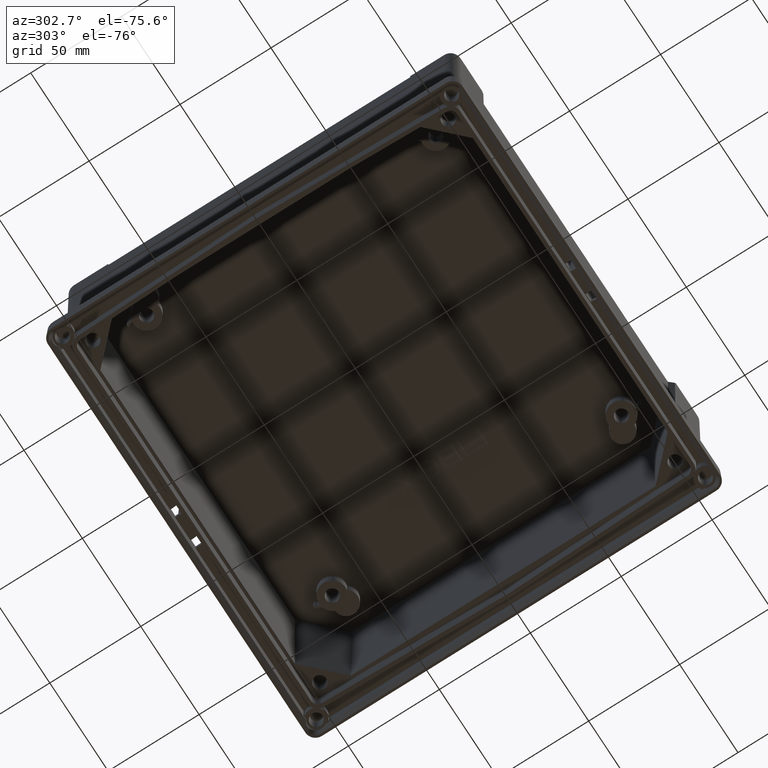
[diagram: clean part render]
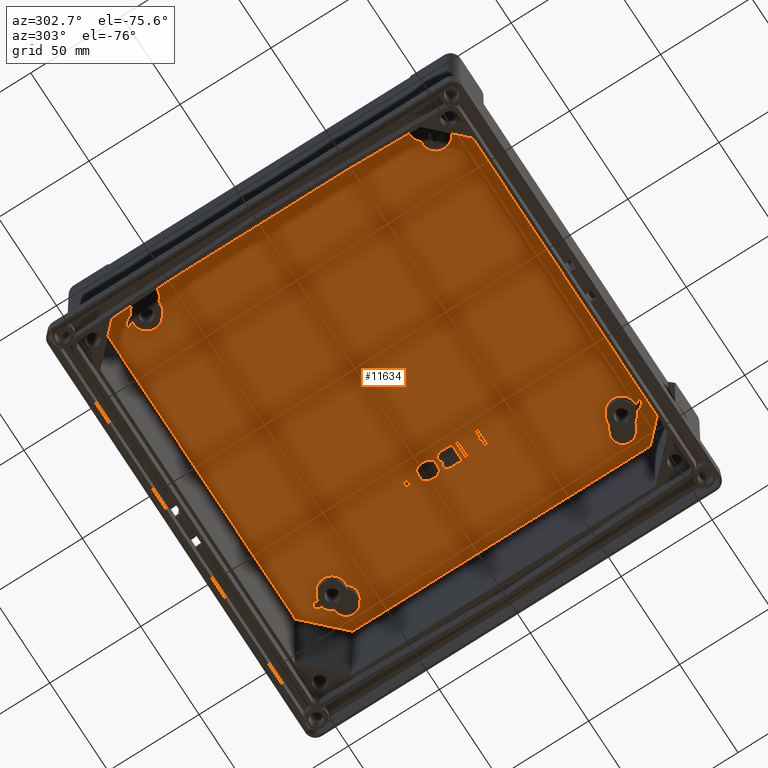
[diagram: same view with one face highlighted and labeled with its STEP entity id]
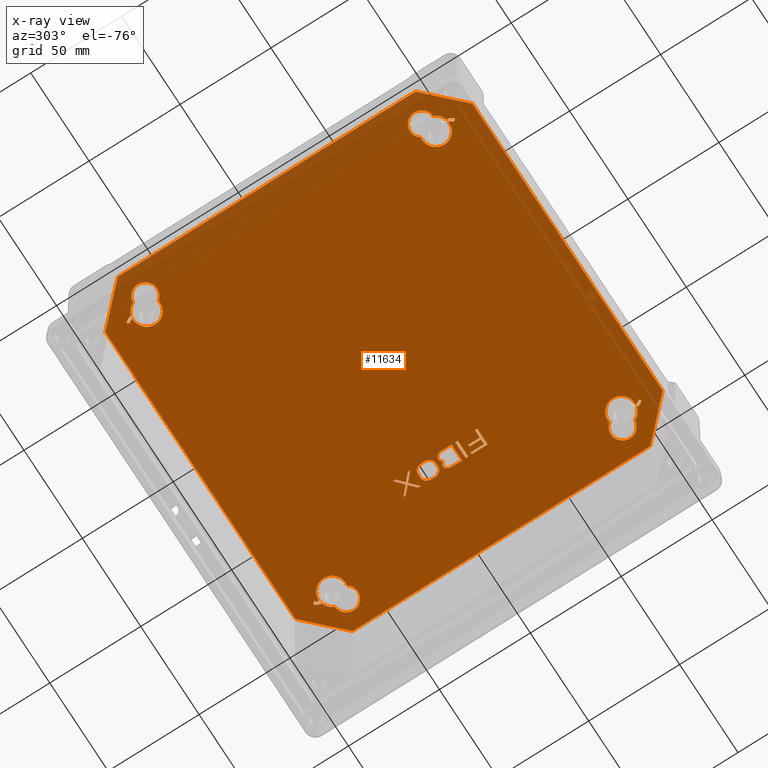
[diagram: x-ray of the same camera — body ghosted, the highlighted face saturated]
A machine part, auxiliary view. The second image highlights one B-rep face of the part: STEP entity #11634.
The next image is the same camera in x-ray: the body ghosted, the highlighted face saturated — about 10% of this face is hidden behind the body in this view.
In plain terms, the highlighted planar face has unit normal (-0, 0, -1).
Its self-contained STEP definition (entity closure, byte-faithful):
#46 = VERTEX_POINT ( 'NONE', #14225 ) ;
#50 = EDGE_CURVE ( 'NONE', #46, #17295, #14220, .T. ) ;
#181 = CARTESIAN_POINT ( 'NONE',  ( -106.7780756917593400, -100.9378842946286500, 89.34999999999999400 ) ) ;
#342 = CARTESIAN_POINT ( 'NONE',  ( 56.17807569175933200, -100.9378842946286500, 89.34999999999999400 ) ) ;
#343 = DIRECTION ( 'NONE',  ( -0.7071067811865473500, -0.7071067811865477900, 0.0000000000000000000 ) ) ;
#344 = VECTOR ( 'NONE', #343, 999.9999999999998900 ) ;
#345 = CARTESIAN_POINT ( 'NONE',  ( 65.73297999319397900, -91.38297999319398500, 89.34999999999999400 ) ) ;
#346 = LINE ( 'NONE', #345, #344 ) ;
#349 = DIRECTION ( 'NONE',  ( -0.7071067811865470200, 0.7071067811865480200, 0.0000000000000000000 ) ) ;
#350 = VECTOR ( 'NONE', #349, 1000.000000000000000 ) ;
#351 = CARTESIAN_POINT ( 'NONE',  ( -116.3329799931940000, -91.38297999319397000, 89.34999999999999400 ) ) ;
#352 = LINE ( 'NONE', #351, #350 ) ;
#374 = CARTESIAN_POINT ( 'NONE',  ( -125.8878842946286600, -81.82807569175931000, 89.34999999999999400 ) ) ;
#393 = CARTESIAN_POINT ( 'NONE',  ( 54.59813974383738600, 90.22238847471089700, 89.35000000000002300 ) ) ;
#394 = CARTESIAN_POINT ( 'NONE',  ( 54.51723326763732300, 90.18972701173801500, 89.35000000000003700 ) ) ;
#395 = CARTESIAN_POINT ( 'NONE',  ( 54.45986572915905600, 90.13134938046648900, 89.35000000000000900 ) ) ;
#412 = CARTESIAN_POINT ( 'NONE',  ( 54.45986572915905600, 90.13134938046648900, 89.35000000000000900 ) ) ;
#413 = B_SPLINE_CURVE_WITH_KNOTS ( 'NONE', 3,
 ( #395, #394, #393, #453, #452, #451 ),
 .UNSPECIFIED., .F., .F.,
 ( 4, 2, 4 ),
 ( 6.938893903907228400E-018, 0.0002420577070856009800, 0.0004841154141711950300 ),
 .UNSPECIFIED. ) ;
#443 = CARTESIAN_POINT ( 'NONE',  ( 54.89483008092367600, 90.12389409946453600, 89.35000000002446500 ) ) ;
#451 = CARTESIAN_POINT ( 'NONE',  ( 54.89483008092367600, 90.12389409946453600, 89.35000000002446500 ) ) ;
#452 = CARTESIAN_POINT ( 'NONE',  ( 54.83949457428477100, 90.18420486643265100, 89.35000000000052000 ) ) ;
#453 = CARTESIAN_POINT ( 'NONE',  ( 54.75957379892698600, 90.21967110618622600, 89.34999999999999400 ) ) ;
#497 = CARTESIAN_POINT ( 'NONE',  ( 53.74850013465061200, 89.00625129568712200, 89.35000000000430000 ) ) ;
#499 = CARTESIAN_POINT ( 'NONE',  ( 53.75775672189108400, 89.41687806407399800, 89.35000000000006500 ) ) ;
#500 = CARTESIAN_POINT ( 'NONE',  ( 53.70444130342647100, 89.36262390015893700, 89.35000000000013600 ) ) ;
#501 = CARTESIAN_POINT ( 'NONE',  ( 53.67348854595570600, 89.28858290155584100, 89.35000000000002300 ) ) ;
#502 = CARTESIAN_POINT ( 'NONE',  ( 53.67013771109386500, 89.13804232316553600, 89.35000000000000900 ) ) ;
#503 = CARTESIAN_POINT ( 'NONE',  ( 53.69768359766018800, 89.06285307786393400, 89.35000000000000900 ) ) ;
#504 = CARTESIAN_POINT ( 'NONE',  ( 53.74850013465061200, 89.00625129568712200, 89.35000000000430000 ) ) ;
#505 = B_SPLINE_CURVE_WITH_KNOTS ( 'NONE', 3,
 ( #504, #503, #502, #501, #500, #499 ),
 .UNSPECIFIED., .F., .F.,
 ( 4, 2, 4 ),
 ( 2.991244086931490900E-014, 0.0002249606436406171400, 0.0004499212872513218400 ),
 .UNSPECIFIED. ) ;
#539 = CARTESIAN_POINT ( 'NONE',  ( 53.75775672189108400, 89.41687806407399800, 89.35000000000006500 ) ) ;
#904 = VERTEX_POINT ( 'NONE', #14257 ) ;
#929 = CARTESIAN_POINT ( 'NONE',  ( 24.99999999999999600, 11.95624907016754100, 89.34999999999999400 ) ) ;
#962 = DIRECTION ( 'NONE',  ( 0.0000000000000000000, -1.000000000000000000, 0.0000000000000000000 ) ) ;
#963 = VECTOR ( 'NONE', #962, 1000.000000000000000 ) ;
#964 = CARTESIAN_POINT ( 'NONE',  ( 34.00000000000000000, 10.98124999999999800, 89.34999999999999400 ) ) ;
#965 = LINE ( 'NONE', #964, #963 ) ;
#966 = DIRECTION ( 'NONE',  ( -0.1552151726965808900, 0.9878806861988803600, 0.0000000000000000000 ) ) ;
#967 = VECTOR ( 'NONE', #966, 999.9999999999998900 ) ;
#968 = CARTESIAN_POINT ( 'NONE',  ( 25.09574467781931200, 9.396875464916227800, 89.34999999999999400 ) ) ;
#969 = LINE ( 'NONE', #968, #967 ) ;
#974 = CARTESIAN_POINT ( 'NONE',  ( 34.00000000000000000, 10.00625092983245800, 89.34999999999999400 ) ) ;
#980 = DIRECTION ( 'NONE',  ( 0.1552151726965810800, 0.9878806861988803600, 0.0000000000000000000 ) ) ;
#981 = VECTOR ( 'NONE', #980, 999.9999999999998900 ) ;
#982 = CARTESIAN_POINT ( 'NONE',  ( 25.09574467781931200, 12.56562453508377100, 89.34999999999999400 ) ) ;
#983 = LINE ( 'NONE', #982, #981 ) ;
#986 = DIRECTION ( 'NONE',  ( 0.1552151594357401600, -0.9878806882824148200, 0.0000000000000000000 ) ) ;
#987 = VECTOR ( 'NONE', #986, 1000.000000000000100 ) ;
#988 = CARTESIAN_POINT ( 'NONE',  ( 33.90425533056259200, 12.56562453508377100, 89.34999999999999400 ) ) ;
#989 = LINE ( 'NONE', #988, #987 ) ;
#996 = CARTESIAN_POINT ( 'NONE',  ( 33.80851066112518300, 13.17500000000000100, 89.34999999999999400 ) ) ;
#1006 = CARTESIAN_POINT ( 'NONE',  ( 34.00000000000000000, 11.95624907016754100, 89.34999999999999400 ) ) ;
#1013 = CARTESIAN_POINT ( 'NONE',  ( 25.19148935563862300, 8.787499999999997900, 89.34999999999999400 ) ) ;
#1047 = CARTESIAN_POINT ( 'NONE',  ( 33.42553198337554900, 14.14999907016753900, 89.34999999999999400 ) ) ;
#1048 = DIRECTION ( 'NONE',  ( 1.000000000000000000, 0.0000000000000000000, 0.0000000000000000000 ) ) ;
#1049 = VECTOR ( 'NONE', #1048, 1000.000000000000000 ) ;
#1050 = CARTESIAN_POINT ( 'NONE',  ( 31.51063832640647900, 4.156249535083770000, 89.34999999999999400 ) ) ;
#1051 = LINE ( 'NONE', #1050, #1049 ) ;
#1058 = CARTESIAN_POINT ( 'NONE',  ( 25.00000000000000000, 10.00625092983245800, 89.34999999999999400 ) ) ;
#1059 = DIRECTION ( 'NONE',  ( -1.779205261886779000E-015, 1.000000000000000000, 0.0000000000000000000 ) ) ;
#1060 = VECTOR ( 'NONE', #1059, 1000.000000000000000 ) ;
#1061 = CARTESIAN_POINT ( 'NONE',  ( 25.00000000000000000, 10.98124999999999800, 89.34999999999999400 ) ) ;
#1062 = LINE ( 'NONE', #1061, #1060 ) ;
#1072 = CARTESIAN_POINT ( 'NONE',  ( 31.12765938043594400, 4.156249535083770000, 89.34999999999999400 ) ) ;
#1088 = CARTESIAN_POINT ( 'NONE',  ( 25.00000000000000000, -19.00000000000000000, 89.34999999999999400 ) ) ;
#1089 = CARTESIAN_POINT ( 'NONE',  ( 25.00000000000000000, -17.53750000000000100, 89.34999999999999400 ) ) ;
#1090 = CARTESIAN_POINT ( 'NONE',  ( 25.57446808367967600, 7.812500929832457300, 89.34999999999999400 ) ) ;
#1091 = DIRECTION ( 'NONE',  ( 0.3656055048287190100, -0.9307699043474372300, 0.0000000000000000000 ) ) ;
#1092 = VECTOR ( 'NONE', #1091, 1000.000000000000100 ) ;
#1093 = CARTESIAN_POINT ( 'NONE',  ( 33.61702132225035900, 13.66249953508377000, 89.34999999999999400 ) ) ;
#1094 = LINE ( 'NONE', #1093, #1092 ) ;
#1128 = EDGE_CURVE ( 'NONE', #904, #46, #14256, .T. ) ;
#1134 = DIRECTION ( 'NONE',  ( -0.3656055464213768800, 0.9307698880098810300, 0.0000000000000000000 ) ) ;
#1135 = VECTOR ( 'NONE', #1134, 1000.000000000000100 ) ;
#1142 = CARTESIAN_POINT ( 'NONE',  ( 25.38297871965915300, 8.300000464916228900, 89.34999999999999400 ) ) ;
#1143 = LINE ( 'NONE', #1142, #1135 ) ;
#1173 = CARTESIAN_POINT ( 'NONE',  ( 31.89361727237701400, 15.61249907016753500, 89.34999999999999400 ) ) ;
#1174 = DIRECTION ( 'NONE',  ( 0.8436261997018003100, -0.5369309407891280600, 0.0000000000000000000 ) ) ;
#1175 = VECTOR ( 'NONE', #1174, 1000.000000000000100 ) ;
#1176 = CARTESIAN_POINT ( 'NONE',  ( 32.27659595012664800, 15.36874999999999700, 89.34999999999999400 ) ) ;
#1177 = LINE ( 'NONE', #1176, #1175 ) ;
#1201 = DIRECTION ( 'NONE',  ( 1.000000000000000000, 0.0000000000000000000, 0.0000000000000000000 ) ) ;
#1202 = DIRECTION ( 'NONE',  ( 0.0000000000000000000, 0.0000000000000000000, 1.000000000000000000 ) ) ;
#1203 = CARTESIAN_POINT ( 'NONE',  ( 54.19999999999999600, 79.50000000000000000, 89.35000000002446500 ) ) ;
#1204 = AXIS2_PLACEMENT_3D ( 'NONE', #1203, #1202, #1201 ) ;
#1205 = CIRCLE ( 'NONE', #1204, 7.499999999998313300 ) ;
#1267 = DIRECTION ( 'NONE',  ( -0.6177639700550090500, 0.7863635783159554900, 0.0000000000000000000 ) ) ;
#1268 = VECTOR ( 'NONE', #1267, 1000.000000000000100 ) ;
#1269 = CARTESIAN_POINT ( 'NONE',  ( 25.95744679495692300, 7.324999999999998400, 89.34999999999999400 ) ) ;
#1270 = LINE ( 'NONE', #1269, #1268 ) ;
#1272 = CARTESIAN_POINT ( 'NONE',  ( 30.55319136381149300, 3.912500464916228300, 89.34999999999999400 ) ) ;
#1277 = DIRECTION ( 'NONE',  ( 0.9205614048781706200, -0.3905978748645835300, 0.0000000000000000000 ) ) ;
#1278 = VECTOR ( 'NONE', #1277, 1000.000000000000000 ) ;
#1279 = CARTESIAN_POINT ( 'NONE',  ( 32.18085128068923200, 4.034374999999999800, 89.34999999999999400 ) ) ;
#1280 = LINE ( 'NONE', #1279, #1278 ) ;
#1281 = CARTESIAN_POINT ( 'NONE',  ( 34.00000000000000000, -10.22500000000000100, 89.34999999999999400 ) ) ;
#1286 = CARTESIAN_POINT ( 'NONE',  ( 31.89361727237701400, 4.156249535083770000, 89.34999999999999400 ) ) ;
#1308 = DIRECTION ( 'NONE',  ( 0.0000000000000000000, 1.000000000000000000, 0.0000000000000000000 ) ) ;
#1309 = VECTOR ( 'NONE', #1308, 1000.000000000000000 ) ;
#1310 = CARTESIAN_POINT ( 'NONE',  ( 25.00000000000000000, -18.26875000000000100, 89.34999999999999400 ) ) ;
#1314 = LINE ( 'NONE', #1310, #1309 ) ;
#1318 = DIRECTION ( 'NONE',  ( 0.9205614048781730600, 0.3905978748645778700, 0.0000000000000000000 ) ) ;
#1319 = VECTOR ( 'NONE', #1318, 1000.000000000000200 ) ;
#1320 = CARTESIAN_POINT ( 'NONE',  ( 30.84042537212371800, 4.034374999999998900, 89.34999999999999400 ) ) ;
#1321 = LINE ( 'NONE', #1320, #1319 ) ;
#1323 = CARTESIAN_POINT ( 'NONE',  ( 26.34042550623416900, 6.837499070167538700, 89.34999999999999400 ) ) ;
#1331 = DIRECTION ( 'NONE',  ( 1.000000000000000000, 0.0000000000000000000, 0.0000000000000000000 ) ) ;
#1332 = VECTOR ( 'NONE', #1331, 1000.000000000000000 ) ;
#1333 = CARTESIAN_POINT ( 'NONE',  ( 29.50000000000000400, -6.812500464916230000, 89.34999999999999400 ) ) ;
#1334 = LINE ( 'NONE', #1333, #1332 ) ;
#1345 = DIRECTION ( 'NONE',  ( -1.000000000000000000, 0.0000000000000000000, 0.0000000000000000000 ) ) ;
#1346 = VECTOR ( 'NONE', #1345, 1000.000000000000000 ) ;
#1347 = CARTESIAN_POINT ( 'NONE',  ( 29.50000000000000400, -19.00000000000000000, 89.34999999999999400 ) ) ;
#1348 = LINE ( 'NONE', #1347, #1346 ) ;
#1349 = CARTESIAN_POINT ( 'NONE',  ( 34.00000000000000000, -19.00000000000000000, 89.34999999999999400 ) ) ;
#1441 = CARTESIAN_POINT ( 'NONE',  ( 32.85106396675109900, -10.22500000000000100, 89.34999999999999400 ) ) ;
#1533 = DIRECTION ( 'NONE',  ( 0.0000000000000000000, -1.000000000000000000, 0.0000000000000000000 ) ) ;
#1534 = VECTOR ( 'NONE', #1533, 1000.000000000000000 ) ;
#1535 = CARTESIAN_POINT ( 'NONE',  ( 34.00000000000000000, -14.61250000000000100, 89.34999999999999400 ) ) ;
#1536 = LINE ( 'NONE', #1535, #1534 ) ;
#1572 = LINE ( 'NONE', #1631, #1630 ) ;
#1601 = CARTESIAN_POINT ( 'NONE',  ( 28.06382969021797200, 6.106249070167539400, 89.34999999999999400 ) ) ;
#1602 = CARTESIAN_POINT ( 'NONE',  ( 27.10638299584388700, 6.350000929832457800, 89.34999999999999400 ) ) ;
#1629 = DIRECTION ( 'NONE',  ( -0.8436262422856424200, 0.5369308738813651800, 0.0000000000000000000 ) ) ;
#1630 = VECTOR ( 'NONE', #1629, 1000.000000000000000 ) ;
#1631 = CARTESIAN_POINT ( 'NONE',  ( 26.72340425103902800, 6.593749999999999100, 89.34999999999999400 ) ) ;
#1671 = CARTESIAN_POINT ( 'NONE',  ( 29.78723400831222500, 3.181250464916227200, 89.34999999999999400 ) ) ;
#1679 = DIRECTION ( 'NONE',  ( 1.000000000000000000, 0.0000000000000000000, 0.0000000000000000000 ) ) ;
#1680 = VECTOR ( 'NONE', #1679, 1000.000000000000000 ) ;
#1681 = CARTESIAN_POINT ( 'NONE',  ( 31.60638299584388000, -17.53750000000000100, 89.34999999999999400 ) ) ;
#1682 = LINE ( 'NONE', #1681, #1680 ) ;
#1684 = DIRECTION ( 'NONE',  ( 1.000000000000000000, 0.0000000000000000000, 0.0000000000000000000 ) ) ;
#1685 = VECTOR ( 'NONE', #1684, 1000.000000000000000 ) ;
#1686 = CARTESIAN_POINT ( 'NONE',  ( 33.42553198337554900, -10.22500000000000100, 89.34999999999999400 ) ) ;
#1687 = LINE ( 'NONE', #1686, #1685 ) ;
#1712 = DIRECTION ( 'NONE',  ( 0.7233041855287849500, 0.6905295469395506000, 0.0000000000000000000 ) ) ;
#1714 = VECTOR ( 'NONE', #1712, 1000.000000000000100 ) ;
#1715 = CARTESIAN_POINT ( 'NONE',  ( 30.17021268606185900, 3.546875464916227700, 89.34999999999999400 ) ) ;
#1716 = LINE ( 'NONE', #1715, #1714 ) ;
#1718 = CARTESIAN_POINT ( 'NONE',  ( 32.85106396675109900, -17.53750000000000100, 89.34999999999999400 ) ) ;
#1726 = CARTESIAN_POINT ( 'NONE',  ( 25.00000000000000000, -8.274999767541885400, 89.34999999999999400 ) ) ;
#1727 = DIRECTION ( 'NONE',  ( 0.0000000000000000000, 1.000000000000000000, 0.0000000000000000000 ) ) ;
#1728 = VECTOR ( 'NONE', #1727, 1000.000000000000000 ) ;
#1729 = CARTESIAN_POINT ( 'NONE',  ( 25.00000000000000000, -7.543750116229057700, 89.34999999999999400 ) ) ;
#1730 = LINE ( 'NONE', #1729, #1728 ) ;
#1732 = CARTESIAN_POINT ( 'NONE',  ( 25.00000000000000000, -6.812500464916230000, 89.34999999999999400 ) ) ;
#1827 = DIRECTION ( 'NONE',  ( 0.0000000000000000000, 1.000000000000000000, 0.0000000000000000000 ) ) ;
#1828 = VECTOR ( 'NONE', #1827, 1000.000000000000000 ) ;
#1829 = CARTESIAN_POINT ( 'NONE',  ( 32.85106396675109900, -13.88125000000000100, 89.34999999999999400 ) ) ;
#1830 = LINE ( 'NONE', #1829, #1828 ) ;
#1835 = EDGE_CURVE ( 'NONE', #1850, #2348, #14235, .T. ) ;
#1839 = CARTESIAN_POINT ( 'NONE',  ( 34.00000000000000000, -8.274999767541885400, 89.34999999999999400 ) ) ;
#1850 = VERTEX_POINT ( 'NONE', #14299 ) ;
#1898 = DIRECTION ( 'NONE',  ( 1.000000000000000000, 0.0000000000000000000, 0.0000000000000000000 ) ) ;
#1899 = DIRECTION ( 'NONE',  ( 0.0000000000000000000, 0.0000000000000000000, 1.000000000000000000 ) ) ;
#1900 = CARTESIAN_POINT ( 'NONE',  ( 54.19999999999999600, 79.50000000000000000, 89.35000000002446500 ) ) ;
#1901 = AXIS2_PLACEMENT_3D ( 'NONE', #1900, #1899, #1898 ) ;
#1902 = CIRCLE ( 'NONE', #1901, 7.499999999998320500 ) ;
#1908 = DIRECTION ( 'NONE',  ( 0.3656045986410378400, 0.9307702602965597400, 0.0000000000000000000 ) ) ;
#1909 = VECTOR ( 'NONE', #1908, 1000.000000000000200 ) ;
#1910 = CARTESIAN_POINT ( 'NONE',  ( 29.69148933887481700, 2.937499999999997300, 89.34999999999999400 ) ) ;
#1911 = LINE ( 'NONE', #1910, #1909 ) ;
#1929 = DIRECTION ( 'NONE',  ( -1.000000000000000000, 0.0000000000000000000, 0.0000000000000000000 ) ) ;
#1930 = VECTOR ( 'NONE', #1929, 1000.000000000000000 ) ;
#1931 = CARTESIAN_POINT ( 'NONE',  ( 29.50000000000000400, -8.274999767541885400, 89.34999999999999400 ) ) ;
#1932 = LINE ( 'NONE', #1931, #1930 ) ;
#2033 = DIRECTION ( 'NONE',  ( 0.0000000000000000000, -1.000000000000000000, 0.0000000000000000000 ) ) ;
#2034 = VECTOR ( 'NONE', #2033, 1000.000000000000000 ) ;
#2035 = CARTESIAN_POINT ( 'NONE',  ( 34.00000000000000000, -7.543750116229057700, 89.34999999999999400 ) ) ;
#2036 = LINE ( 'NONE', #2035, #2034 ) ;
#2041 = DIRECTION ( 'NONE',  ( -0.7009092642998419100, -0.7132504491541904500, 0.0000000000000000000 ) ) ;
#2042 = VECTOR ( 'NONE', #2041, 1000.000000000000000 ) ;
#2043 = CARTESIAN_POINT ( 'NONE',  ( 54.10881133069256100, 89.77411382925160400, 89.34999999999999400 ) ) ;
#2044 = LINE ( 'NONE', #2043, #2042 ) ;
#2045 = CARTESIAN_POINT ( 'NONE',  ( 34.00000000000000000, -6.812500464916230000, 89.34999999999999400 ) ) ;
#2066 = CARTESIAN_POINT ( 'NONE',  ( 56.46530060728821400, 86.64971420118364200, 89.35000000001225800 ) ) ;
#2067 = DIRECTION ( 'NONE',  ( 1.000000000000000000, 0.0000000000000000000, 0.0000000000000000000 ) ) ;
#2068 = DIRECTION ( 'NONE',  ( 0.0000000000000000000, 0.0000000000000000000, 1.000000000000000000 ) ) ;
#2069 = CARTESIAN_POINT ( 'NONE',  ( 50.39999999999999900, 86.00000000000000000, 89.35000000002446500 ) ) ;
#2070 = AXIS2_PLACEMENT_3D ( 'NONE', #2069, #2068, #2067 ) ;
#2071 = CIRCLE ( 'NONE', #2070, 6.099999999998447100 ) ;
#2072 = DIRECTION ( 'NONE',  ( 0.0000000000000000000, -1.000000000000000000, 0.0000000000000000000 ) ) ;
#2073 = VECTOR ( 'NONE', #2072, 1000.000000000000000 ) ;
#2074 = CARTESIAN_POINT ( 'NONE',  ( 30.36170202493667600, -14.36874988377094400, 89.34999999999999400 ) ) ;
#2075 = LINE ( 'NONE', #2074, #2073 ) ;
#2076 = CARTESIAN_POINT ( 'NONE',  ( 30.36170202493667600, -11.19999976754188600, 89.34999999999999400 ) ) ;
#2096 = CARTESIAN_POINT ( 'NONE',  ( 61.07867103339481900, 82.48896049059239000, 89.35000000001994600 ) ) ;
#2131 = CIRCLE ( 'NONE', #2182, 4.499999999998172100 ) ;
#2132 = CARTESIAN_POINT ( 'NONE',  ( 30.36170202493667600, -17.53750000000000100, 89.34999999999999400 ) ) ;
#2133 = CARTESIAN_POINT ( 'NONE',  ( 54.79276360834547400, 86.97653872487855200, 89.35000000002224900 ) ) ;
#2135 = DIRECTION ( 'NONE',  ( 1.000000000000000000, 0.0000000000000000000, 0.0000000000000000000 ) ) ;
#2136 = DIRECTION ( 'NONE',  ( -0.0000000000000000000, -0.0000000000000000000, -1.000000000000000000 ) ) ;
#2137 = CARTESIAN_POINT ( 'NONE',  ( 60.69999999999999600, 76.00000000000000000, 89.35000000004895100 ) ) ;
#2138 = AXIS2_PLACEMENT_3D ( 'NONE', #2137, #2136, #2135 ) ;
#2139 = CIRCLE ( 'NONE', #2138, 6.500000000000192700 ) ;
#2179 = DIRECTION ( 'NONE',  ( -1.000000000000000000, 6.167905692364486400E-015, 0.0000000000000000000 ) ) ;
#2180 = DIRECTION ( 'NONE',  ( 0.0000000000000000000, 0.0000000000000000000, 1.000000000000000000 ) ) ;
#2181 = CARTESIAN_POINT ( 'NONE',  ( 50.39999999999999900, 86.00000000000000000, 89.35000000004895100 ) ) ;
#2182 = AXIS2_PLACEMENT_3D ( 'NONE', #2181, #2180, #2179 ) ;
#2186 = DIRECTION ( 'NONE',  ( 1.000000000000000000, 0.0000000000000000000, 0.0000000000000000000 ) ) ;
#2187 = VECTOR ( 'NONE', #2186, 1000.000000000000000 ) ;
#2188 = CARTESIAN_POINT ( 'NONE',  ( 29.78723400831222500, -11.19999976754188600, 89.34999999999999400 ) ) ;
#2189 = LINE ( 'NONE', #2188, #2187 ) ;
#2200 = CARTESIAN_POINT ( 'NONE',  ( 29.21276599168777500, -11.19999976754188600, 89.34999999999999400 ) ) ;
#2212 = DIRECTION ( 'NONE',  ( 0.0000000000000000000, 1.000000000000000000, 0.0000000000000000000 ) ) ;
#2213 = VECTOR ( 'NONE', #2212, 1000.000000000000000 ) ;
#2214 = CARTESIAN_POINT ( 'NONE',  ( 29.21276599168777500, -14.36874988377094400, 89.34999999999999400 ) ) ;
#2215 = LINE ( 'NONE', #2214, #2213 ) ;
#2220 = CARTESIAN_POINT ( 'NONE',  ( 29.21276599168777500, -17.53750000000000100, 89.34999999999999400 ) ) ;
#2254 = DIRECTION ( 'NONE',  ( 0.0000000000000000000, 1.000000000000000000, 0.0000000000000000000 ) ) ;
#2255 = VECTOR ( 'NONE', #2254, 1000.000000000000000 ) ;
#2256 = CARTESIAN_POINT ( 'NONE',  ( 24.99999999999999600, 26.82500092983245600, 89.34999999999999400 ) ) ;
#2257 = LINE ( 'NONE', #2256, #2255 ) ;
#2322 = EDGE_CURVE ( 'NONE', #2475, #1850, #14289, .T. ) ;
#2348 = VERTEX_POINT ( 'NONE', #14276 ) ;
#2412 = DIRECTION ( 'NONE',  ( 1.000000000000000000, 0.0000000000000000000, 0.0000000000000000000 ) ) ;
#2413 = CARTESIAN_POINT ( 'NONE',  ( -25.30000000000000800, 100.9378842946286500, 89.34999999999999400 ) ) ;
#2417 = LINE ( 'NONE', #2413, #2471 ) ;
#2451 = EDGE_CURVE ( 'NONE', #2348, #904, #14324, .T. ) ;
#2454 = DIRECTION ( 'NONE',  ( 0.0000000000000000000, 1.000000000000000000, 0.0000000000000000000 ) ) ;
#2455 = VECTOR ( 'NONE', #2454, 1000.000000000000000 ) ;
#2456 = CARTESIAN_POINT ( 'NONE',  ( 75.28788429462864000, 0.0000000000000000000, 89.34999999999999400 ) ) ;
#2457 = LINE ( 'NONE', #2456, #2455 ) ;
#2467 = DIRECTION ( 'NONE',  ( 1.000000000000000000, 0.0000000000000000000, 0.0000000000000000000 ) ) ;
#2468 = VECTOR ( 'NONE', #2467, 1000.000000000000000 ) ;
#2469 = CARTESIAN_POINT ( 'NONE',  ( 27.10638299584388700, -17.53750000000000100, 89.34999999999999400 ) ) ;
#2470 = LINE ( 'NONE', #2469, #2468 ) ;
#2471 = VECTOR ( 'NONE', #2412, 1000.000000000000000 ) ;
#2475 = VERTEX_POINT ( 'NONE', #14316 ) ;
#2489 = VERTEX_POINT ( 'NONE', #14314 ) ;
#2495 = EDGE_CURVE ( 'NONE', #2489, #2475, #14313, .T. ) ;
#2542 = EDGE_CURVE ( 'NONE', #2600, #2489, #14305, .T. ) ;
#2557 = DIRECTION ( 'NONE',  ( 0.0000000000000000000, -1.000000000000000000, 0.0000000000000000000 ) ) ;
#2558 = VECTOR ( 'NONE', #2557, 1000.000000000000000 ) ;
#2559 = CARTESIAN_POINT ( 'NONE',  ( -125.8878842946286600, 0.0000000000000000000, 89.34999999999999400 ) ) ;
#2560 = LINE ( 'NONE', #2559, #2558 ) ;
#2600 = VERTEX_POINT ( 'NONE', #14359 ) ;
#2722 = DIRECTION ( 'NONE',  ( 1.000000000000000000, 0.0000000000000000000, 0.0000000000000000000 ) ) ;
#2723 = VECTOR ( 'NONE', #2722, 1000.000000000000000 ) ;
#2724 = CARTESIAN_POINT ( 'NONE',  ( -25.30000000000000800, -100.9378842946286500, 89.34999999999999400 ) ) ;
#2725 = LINE ( 'NONE', #2724, #2723 ) ;
#2774 = EDGE_CURVE ( 'NONE', #2916, #2980, #14338, .T. ) ;
#2916 = VERTEX_POINT ( 'NONE', #14391 ) ;
#2980 = VERTEX_POINT ( 'NONE', #14390 ) ;
#3111 = CARTESIAN_POINT ( 'NONE',  ( 75.28788429462864000, 81.82807569175932400, 89.34999999999999400 ) ) ;
#3170 = CARTESIAN_POINT ( 'NONE',  ( -125.8878842946286600, 81.82807569175931000, 89.34999999999999400 ) ) ;
#3209 = CARTESIAN_POINT ( 'NONE',  ( -106.7780756917593400, 100.9378842946286500, 89.34999999999999400 ) ) ;
#3215 = DIRECTION ( 'NONE',  ( -0.7071067811865470200, -0.7071067811865480200, 0.0000000000000000000 ) ) ;
#3216 = VECTOR ( 'NONE', #3215, 1000.000000000000000 ) ;
#3217 = CARTESIAN_POINT ( 'NONE',  ( -116.3329799931940000, 91.38297999319397000, 89.34999999999999400 ) ) ;
#3218 = LINE ( 'NONE', #3217, #3216 ) ;
#3283 = LINE ( 'NONE', #3345, #3344 ) ;
#3342 = CARTESIAN_POINT ( 'NONE',  ( 56.17807569175933200, 100.9378842946286500, 89.34999999999999400 ) ) ;
#3343 = DIRECTION ( 'NONE',  ( -0.7071067811865473500, 0.7071067811865477900, 0.0000000000000000000 ) ) ;
#3344 = VECTOR ( 'NONE', #3343, 999.9999999999998900 ) ;
#3345 = CARTESIAN_POINT ( 'NONE',  ( 65.73297999319397900, 91.38297999319398500, 89.34999999999999400 ) ) ;
#3414 = CARTESIAN_POINT ( 'NONE',  ( 24.99999999999999600, 26.09375092983245300, 89.34999999999999400 ) ) ;
#3427 = CARTESIAN_POINT ( 'NONE',  ( 30.93617004156112700, 6.106249070167539400, 89.34999999999999400 ) ) ;
#3501 = LINE ( 'NONE', #3564, #3563 ) ;
#3510 = DIRECTION ( 'NONE',  ( -0.7293774822167280500, 0.6841114590731445200, 0.0000000000000000000 ) ) ;
#3511 = VECTOR ( 'NONE', #3510, 999.9999999999998900 ) ;
#3512 = CARTESIAN_POINT ( 'NONE',  ( 26.81914898753166200, 24.38750046491622600, 89.34999999999999400 ) ) ;
#3516 = LINE ( 'NONE', #3512, #3511 ) ;
#3552 = CARTESIAN_POINT ( 'NONE',  ( 31.89361727237701400, 6.350000929832457800, 89.34999999999999400 ) ) ;
#3557 = CARTESIAN_POINT ( 'NONE',  ( 28.63829797506332000, 22.68124999999999900, 89.34999999999999400 ) ) ;
#3562 = DIRECTION ( 'NONE',  ( -1.000000000000000000, 0.0000000000000000000, 0.0000000000000000000 ) ) ;
#3563 = VECTOR ( 'NONE', #3562, 1000.000000000000000 ) ;
#3564 = CARTESIAN_POINT ( 'NONE',  ( 29.49999986588954600, 6.106249070167539400, 89.34999999999999400 ) ) ;
#3596 = EDGE_CURVE ( 'NONE', #3617, #2916, #14374, .T. ) ;
#3613 = DIRECTION ( 'NONE',  ( -0.9690879409984883800, 0.2467155499990021600, 0.0000000000000000000 ) ) ;
#3614 = VECTOR ( 'NONE', #3613, 1000.000000000000200 ) ;
#3615 = CARTESIAN_POINT ( 'NONE',  ( 27.58510634303093000, 6.228124999999999500, 89.34999999999999400 ) ) ;
#3616 = LINE ( 'NONE', #3615, #3614 ) ;
#3617 = VERTEX_POINT ( 'NONE', #14370 ) ;
#3642 = EDGE_CURVE ( 'NONE', #2980, #2600, #14369, .T. ) ;
#3644 = DIRECTION ( 'NONE',  ( -0.9690879740479132500, -0.2467154201822636100, 0.0000000000000000000 ) ) ;
#3645 = VECTOR ( 'NONE', #3644, 1000.000000000000100 ) ;
#3646 = CARTESIAN_POINT ( 'NONE',  ( 31.41489365696907000, 6.228124999999999500, 89.34999999999999400 ) ) ;
#3652 = LINE ( 'NONE', #3646, #3645 ) ;
#3736 = CARTESIAN_POINT ( 'NONE',  ( 32.65957462787628200, 6.837499070167540400, 89.34999999999999400 ) ) ;
#3761 = DIRECTION ( 'NONE',  ( -0.8436261997017964200, -0.5369309407891342800, 0.0000000000000000000 ) ) ;
#3762 = VECTOR ( 'NONE', #3761, 1000.000000000000000 ) ;
#3769 = CARTESIAN_POINT ( 'NONE',  ( 32.27659595012664800, 6.593749999999999100, 89.34999999999999400 ) ) ;
#3770 = LINE ( 'NONE', #3769, #3762 ) ;
#3858 = DIRECTION ( 'NONE',  ( -0.3656055048287166800, -0.9307699043474381200, 0.0000000000000000000 ) ) ;
#3873 = VECTOR ( 'NONE', #3858, 1000.000000000000200 ) ;
#3874 = CARTESIAN_POINT ( 'NONE',  ( 33.61702132225036600, 8.300000464916228900, 89.34999999999999400 ) ) ;
#3875 = LINE ( 'NONE', #3874, #3873 ) ;
#3896 = LINE ( 'NONE', #3947, #3946 ) ;
#3898 = CARTESIAN_POINT ( 'NONE',  ( 33.42553198337555600, 7.812500929832466100, 89.34999999999999400 ) ) ;
#3916 = CARTESIAN_POINT ( 'NONE',  ( 33.80851066112518300, 8.787499999999992500, 89.34999999999999400 ) ) ;
#3937 = DIRECTION ( 'NONE',  ( -0.1552151594357397100, -0.9878806882824150400, 0.0000000000000000000 ) ) ;
#3938 = VECTOR ( 'NONE', #3937, 1000.000000000000000 ) ;
#3939 = CARTESIAN_POINT ( 'NONE',  ( 33.90425533056259200, 9.396875464916226100, 89.34999999999999400 ) ) ;
#3940 = LINE ( 'NONE', #3939, #3938 ) ;
#3945 = DIRECTION ( 'NONE',  ( -0.6177639366126143100, -0.7863636045881611200, 0.0000000000000000000 ) ) ;
#3946 = VECTOR ( 'NONE', #3945, 1000.000000000000100 ) ;
#3947 = CARTESIAN_POINT ( 'NONE',  ( 33.04255330562591600, 7.325000000000003700, 89.34999999999999400 ) ) ;
#3991 = ORIENTED_EDGE ( 'NONE', *, *, #15707, .F. ) ;
#3996 = ORIENTED_EDGE ( 'NONE', *, *, #16439, .T. ) ;
#4216 = VERTEX_POINT ( 'NONE', #14811 ) ;
#4219 = EDGE_CURVE ( 'NONE', #4216, #10757, #14810, .T. ) ;
#4265 = ORIENTED_EDGE ( 'NONE', *, *, #14481, .F. ) ;
#4569 = CARTESIAN_POINT ( 'NONE',  ( -104.3577569638444500, 89.41687831036831800, 89.35000000022539300 ) ) ;
#4604 = CARTESIAN_POINT ( 'NONE',  ( -105.4948301275268700, 90.12389404905619000, 89.35000000002462200 ) ) ;
#4675 = DIRECTION ( 'NONE',  ( 0.7009092642998383500, -0.7132504491541938900, 0.0000000000000000000 ) ) ;
#4676 = VECTOR ( 'NONE', #4675, 1000.000000000000000 ) ;
#4677 = CARTESIAN_POINT ( 'NONE',  ( -104.7088113306925700, 89.77411382925160400, 89.34999999999999400 ) ) ;
#4678 = LINE ( 'NONE', #4677, #4676 ) ;
#4698 = CARTESIAN_POINT ( 'NONE',  ( -104.3577569638444500, 89.41687831036831800, 89.35000000022539300 ) ) ;
#4699 = CARTESIAN_POINT ( 'NONE',  ( -104.3044413476048200, 89.36262394511507500, 89.35000000000006500 ) ) ;
#4700 = CARTESIAN_POINT ( 'NONE',  ( -104.2734886766006900, 89.28858330957017100, 89.34999999999999400 ) ) ;
#4701 = CARTESIAN_POINT ( 'NONE',  ( -104.2701376019963100, 89.13804288316484300, 89.34999999999999400 ) ) ;
#4702 = CARTESIAN_POINT ( 'NONE',  ( -104.2976836397678400, 89.06285303096267100, 89.35000000000000900 ) ) ;
#4703 = CARTESIAN_POINT ( 'NONE',  ( -104.3484996813467700, 89.00625180021705800, 89.34999999999998000 ) ) ;
#4704 = B_SPLINE_CURVE_WITH_KNOTS ( 'NONE', 3,
 ( #4703, #4702, #4701, #4700, #4699, #4698 ),
 .UNSPECIFIED., .F., .F.,
 ( 4, 2, 4 ),
 ( 6.686210209780265200E-010, 0.0002249611258250761100, 0.0004499215830291312000 ),
 .UNSPECIFIED. ) ;
#4705 = CARTESIAN_POINT ( 'NONE',  ( -104.3484996813467700, 89.00625180021705800, 89.34999999999998000 ) ) ;
#4744 = CARTESIAN_POINT ( 'NONE',  ( -105.4948301275268700, 90.12389404905619000, 89.35000000002462200 ) ) ;
#4745 = CARTESIAN_POINT ( 'NONE',  ( -105.4394946098145300, 90.18420482770838500, 89.35000000000030700 ) ) ;
#4746 = CARTESIAN_POINT ( 'NONE',  ( -105.3595739005173800, 90.21967106261071500, 89.34999999999998000 ) ) ;
#4747 = CARTESIAN_POINT ( 'NONE',  ( -105.1981399532165400, 90.22238851305188200, 89.34999999999999400 ) ) ;
#4748 = CARTESIAN_POINT ( 'NONE',  ( -105.1172332308014300, 90.18972697425417100, 89.35000000000000900 ) ) ;
#4749 = CARTESIAN_POINT ( 'NONE',  ( -105.0598659501726100, 90.13134960537151100, 89.34999999999999400 ) ) ;
#4750 = CARTESIAN_POINT ( 'NONE',  ( -105.0598659501726100, 90.13134960537151100, 89.34999999999999400 ) ) ;
#4751 = B_SPLINE_CURVE_WITH_KNOTS ( 'NONE', 3,
 ( #4749, #4748, #4747, #4746, #4745, #4744 ),
 .UNSPECIFIED., .F., .F.,
 ( 4, 2, 4 ),
 ( 3.108496413790540300E-010, 0.0002420578625105246500, 0.0004841154141714079100 ),
 .UNSPECIFIED. ) ;
#4783 = DIRECTION ( 'NONE',  ( 1.000000000000000000, 0.0000000000000000000, 0.0000000000000000000 ) ) ;
#4784 = DIRECTION ( 'NONE',  ( 0.0000000000000000000, 0.0000000000000000000, -1.000000000000000000 ) ) ;
#4785 = CARTESIAN_POINT ( 'NONE',  ( -104.8000000000000100, 79.50000000000000000, 89.35000000004895100 ) ) ;
#4786 = AXIS2_PLACEMENT_3D ( 'NONE', #4785, #4784, #4783 ) ;
#4787 = CIRCLE ( 'NONE', #4786, 7.499999999999396000 ) ;
#4840 = CARTESIAN_POINT ( 'NONE',  ( -106.0910537372466700, 72.11195694060079100, 89.35000000001679200 ) ) ;
#4841 = DIRECTION ( 'NONE',  ( 1.000000000000000000, 0.0000000000000000000, 0.0000000000000000000 ) ) ;
#4842 = DIRECTION ( 'NONE',  ( -0.0000000000000000000, -0.0000000000000000000, 1.000000000000000000 ) ) ;
#4843 = CARTESIAN_POINT ( 'NONE',  ( -111.3000000000000000, 76.00000000000000000, 89.35000000002446500 ) ) ;
#4844 = AXIS2_PLACEMENT_3D ( 'NONE', #4843, #4842, #4841 ) ;
#4845 = CIRCLE ( 'NONE', #4844, 6.499999999999103800 ) ;
#4848 = DIRECTION ( 'NONE',  ( 1.000000000000000000, 6.825141544827751500E-015, 0.0000000000000000000 ) ) ;
#4849 = DIRECTION ( 'NONE',  ( 0.0000000000000000000, 0.0000000000000000000, -1.000000000000000000 ) ) ;
#4850 = CARTESIAN_POINT ( 'NONE',  ( -101.0000000000000000, 86.00000000000000000, 89.35000000004895100 ) ) ;
#4851 = AXIS2_PLACEMENT_3D ( 'NONE', #4850, #4849, #4848 ) ;
#4852 = CIRCLE ( 'NONE', #4851, 6.099999999999133700 ) ;
#4870 = DIRECTION ( 'NONE',  ( -1.000000000000000000, 0.0000000000000000000, 0.0000000000000000000 ) ) ;
#4871 = DIRECTION ( 'NONE',  ( 0.0000000000000000000, 0.0000000000000000000, -1.000000000000000000 ) ) ;
#4872 = CARTESIAN_POINT ( 'NONE',  ( -101.0000000000000000, 86.00000000000000000, 89.35000000002446500 ) ) ;
#4873 = AXIS2_PLACEMENT_3D ( 'NONE', #4872, #4871, #4870 ) ;
#4882 = CIRCLE ( 'NONE', #4873, 4.499999999999254800 ) ;
#5472 = DIRECTION ( 'NONE',  ( -0.0000000000000000000, 0.0000000000000000000, -1.000000000000000000 ) ) ;
#5473 = AXIS2_PLACEMENT_3D ( 'NONE', #5475, #5472, #5542 ) ;
#5475 = CARTESIAN_POINT ( 'NONE',  ( 0.0000000000000000000, 0.0000000000000000000, 89.34999999999999400 ) ) ;
#5476 = PLANE ( 'NONE',  #5473 ) ;
#5477 = FACE_OUTER_BOUND ( 'NONE', #11708, .T. ) ;
#5478 = FACE_BOUND ( 'NONE', #11721, .T. ) ;
#5479 = FACE_BOUND ( 'NONE', #11732, .T. ) ;
#5480 = FACE_BOUND ( 'NONE', #16482, .T. ) ;
#5481 = FACE_BOUND ( 'NONE', #17317, .T. ) ;
#5482 = FACE_BOUND ( 'NONE', #11651, .T. ) ;
#5483 = FACE_BOUND ( 'NONE', #11667, .T. ) ;
#5484 = FACE_BOUND ( 'NONE', #11686, .T. ) ;
#5485 = FACE_BOUND ( 'NONE', #11607, .T. ) ;
#5486 = FACE_BOUND ( 'NONE', #11635, .T. ) ;
#5542 = DIRECTION ( 'NONE',  ( -1.000000000000000000, 0.0000000000000000000, 0.0000000000000000000 ) ) ;
#7121 = CARTESIAN_POINT ( 'NONE',  ( -104.3577567219300400, -89.41687806403790300, 89.34999999999999400 ) ) ;
#7123 = CARTESIAN_POINT ( 'NONE',  ( -105.4948296519521200, -90.12389456740893900, 89.35000000000026400 ) ) ;
#7124 = CARTESIAN_POINT ( 'NONE',  ( -105.4394945742848100, -90.18420486643265100, 89.35000000000056300 ) ) ;
#7125 = CARTESIAN_POINT ( 'NONE',  ( -105.3595737989269700, -90.21967110618622600, 89.34999999999996600 ) ) ;
#7126 = CARTESIAN_POINT ( 'NONE',  ( -105.1981397438373700, -90.22238847471091100, 89.34999999999999400 ) ) ;
#7127 = CARTESIAN_POINT ( 'NONE',  ( -105.1172332676371900, -90.18972701173815700, 89.35000000000000900 ) ) ;
#7128 = CARTESIAN_POINT ( 'NONE',  ( -105.0598657291590600, -90.13134938046648900, 89.35000000000000900 ) ) ;
#7130 = B_SPLINE_CURVE_WITH_KNOTS ( 'NONE', 3,
 ( #7128, #7127, #7126, #7125, #7124, #7123 ),
 .UNSPECIFIED., .F., .F.,
 ( 4, 2, 4 ),
 ( 0.0000000000000000000, 0.0002420577070856561200, 0.0004841154141713122300 ),
 .UNSPECIFIED. ) ;
#7138 = CARTESIAN_POINT ( 'NONE',  ( -105.0598657291590600, -90.13134938046648900, 89.35000000000000900 ) ) ;
#7208 = CARTESIAN_POINT ( 'NONE',  ( -105.4948296519521200, -90.12389456740893900, 89.35000000000026400 ) ) ;
#7254 = DIRECTION ( 'NONE',  ( 1.000000000000000000, 0.0000000000000000000, 0.0000000000000000000 ) ) ;
#7255 = DIRECTION ( 'NONE',  ( 0.0000000000000000000, 0.0000000000000000000, 1.000000000000000000 ) ) ;
#7256 = AXIS2_PLACEMENT_3D ( 'NONE', #7264, #7255, #7254 ) ;
#7257 = CIRCLE ( 'NONE', #7256, 6.099999999999133700 ) ;
#7264 = CARTESIAN_POINT ( 'NONE',  ( -101.0000000000000000, -86.00000000000000000, 89.35000000002446500 ) ) ;
#7283 = CARTESIAN_POINT ( 'NONE',  ( -107.0653006072885100, -86.64971420118411100, 89.35000000001225800 ) ) ;
#7289 = DIRECTION ( 'NONE',  ( 0.7009092642998383500, 0.7132504491541938900, 0.0000000000000000000 ) ) ;
#7290 = VECTOR ( 'NONE', #7289, 1000.000000000000000 ) ;
#7291 = CARTESIAN_POINT ( 'NONE',  ( -104.7088113306925700, -89.77411382925160400, 89.34999999999999400 ) ) ;
#7292 = LINE ( 'NONE', #7291, #7290 ) ;
#7306 = CARTESIAN_POINT ( 'NONE',  ( -104.3485001103247600, -89.00625132202021900, 89.35000000004895100 ) ) ;
#7308 = B_SPLINE_CURVE_WITH_KNOTS ( 'NONE', 3,
 ( #7306, #7347, #7346, #7345, #7344, #7343 ),
 .UNSPECIFIED., .F., .F.,
 ( 4, 2, 4 ),
 ( 3.528157246497191900E-011, 0.0002249606612651736800, 0.0004499212872487748900 ),
 .UNSPECIFIED. ) ;
#7315 = CARTESIAN_POINT ( 'NONE',  ( -104.3485001103247600, -89.00625132202021900, 89.35000000004895100 ) ) ;
#7343 = CARTESIAN_POINT ( 'NONE',  ( -104.3577567219300400, -89.41687806403790300, 89.34999999999999400 ) ) ;
#7344 = CARTESIAN_POINT ( 'NONE',  ( -104.3044413076041200, -89.36262390441011400, 89.35000000000012200 ) ) ;
#7345 = CARTESIAN_POINT ( 'NONE',  ( -104.2734885506504400, -89.28858291285109800, 89.35000000000002300 ) ) ;
#7346 = CARTESIAN_POINT ( 'NONE',  ( -104.2701377071867500, -89.13804234725248000, 89.35000000000000900 ) ) ;
#7347 = CARTESIAN_POINT ( 'NONE',  ( -104.2976836016418800, -89.06285307342872700, 89.34999999999999400 ) ) ;
#7348 = CIRCLE ( 'NONE', #7388, 7.499999999999396000 ) ;
#7372 = DIRECTION ( 'NONE',  ( 1.000000000000000000, 0.0000000000000000000, 0.0000000000000000000 ) ) ;
#7373 = DIRECTION ( 'NONE',  ( 0.0000000000000000000, 0.0000000000000000000, 1.000000000000000000 ) ) ;
#7374 = AXIS2_PLACEMENT_3D ( 'NONE', #7383, #7373, #7372 ) ;
#7375 = CIRCLE ( 'NONE', #7374, 7.499999999999396000 ) ;
#7382 = CARTESIAN_POINT ( 'NONE',  ( -105.3927636083459200, -86.97653872487904900, 89.35000000002224900 ) ) ;
#7383 = CARTESIAN_POINT ( 'NONE',  ( -104.8000000000000100, -79.50000000000000000, 89.35000000002446500 ) ) ;
#7385 = DIRECTION ( 'NONE',  ( 1.000000000000000000, 0.0000000000000000000, 0.0000000000000000000 ) ) ;
#7386 = DIRECTION ( 'NONE',  ( 0.0000000000000000000, 0.0000000000000000000, 1.000000000000000000 ) ) ;
#7387 = CARTESIAN_POINT ( 'NONE',  ( -104.8000000000000100, -79.50000000000000000, 89.35000000002446500 ) ) ;
#7388 = AXIS2_PLACEMENT_3D ( 'NONE', #7387, #7386, #7385 ) ;
#7406 = CARTESIAN_POINT ( 'NONE',  ( -111.6786710333955500, -82.48896049059136700, 89.35000000003670100 ) ) ;
#7408 = CIRCLE ( 'NONE', #7436, 6.499999999999103800 ) ;
#7410 = DIRECTION ( 'NONE',  ( -1.000000000000000000, 0.0000000000000000000, 0.0000000000000000000 ) ) ;
#7411 = DIRECTION ( 'NONE',  ( 0.0000000000000000000, 0.0000000000000000000, 1.000000000000000000 ) ) ;
#7412 = CARTESIAN_POINT ( 'NONE',  ( -101.0000000000000000, -86.00000000000000000, 89.35000000004895100 ) ) ;
#7413 = AXIS2_PLACEMENT_3D ( 'NONE', #7412, #7411, #7410 ) ;
#7414 = CIRCLE ( 'NONE', #7413, 4.499999999999254800 ) ;
#7433 = DIRECTION ( 'NONE',  ( 1.000000000000000000, 0.0000000000000000000, 0.0000000000000000000 ) ) ;
#7434 = DIRECTION ( 'NONE',  ( -0.0000000000000000000, -0.0000000000000000000, -1.000000000000000000 ) ) ;
#7435 = CARTESIAN_POINT ( 'NONE',  ( -111.3000000000000000, -76.00000000000000000, 89.35000000004895100 ) ) ;
#7436 = AXIS2_PLACEMENT_3D ( 'NONE', #7435, #7434, #7433 ) ;
#9023 = CARTESIAN_POINT ( 'NONE',  ( 54.89483012752642600, -90.12389404905613300, 89.35000000002460800 ) ) ;
#9045 = CARTESIAN_POINT ( 'NONE',  ( 54.89483012752642600, -90.12389404905613300, 89.35000000002460800 ) ) ;
#9046 = CARTESIAN_POINT ( 'NONE',  ( 54.83949460981451600, -90.18420482770834200, 89.35000000000026400 ) ) ;
#9047 = CARTESIAN_POINT ( 'NONE',  ( 54.75957390051738800, -90.21967106261070100, 89.34999999999996600 ) ) ;
#9048 = CARTESIAN_POINT ( 'NONE',  ( 54.59813995321656000, -90.22238851305188200, 89.35000000000002300 ) ) ;
#9049 = CARTESIAN_POINT ( 'NONE',  ( 54.51723323080148700, -90.18972697425418500, 89.35000000000003700 ) ) ;
#9050 = CARTESIAN_POINT ( 'NONE',  ( 54.45986595017262000, -90.13134960537149700, 89.35000000000000900 ) ) ;
#9052 = CARTESIAN_POINT ( 'NONE',  ( 54.45986595017262000, -90.13134960537149700, 89.35000000000000900 ) ) ;
#9053 = B_SPLINE_CURVE_WITH_KNOTS ( 'NONE', 3,
 ( #9050, #9049, #9048, #9047, #9046, #9045 ),
 .UNSPECIFIED., .F., .F.,
 ( 4, 2, 4 ),
 ( 3.108496220033790500E-010, 0.0002420578625104761300, 0.0004841154141713302800 ),
 .UNSPECIFIED. ) ;
#9061 = DIRECTION ( 'NONE',  ( 1.000000000000000000, 0.0000000000000000000, 0.0000000000000000000 ) ) ;
#9062 = DIRECTION ( 'NONE',  ( -0.0000000000000000000, -0.0000000000000000000, 1.000000000000000000 ) ) ;
#9063 = CARTESIAN_POINT ( 'NONE',  ( 60.69999999999999600, -76.00000000000000000, 89.35000000002446500 ) ) ;
#9064 = AXIS2_PLACEMENT_3D ( 'NONE', #9063, #9062, #9061 ) ;
#9065 = CIRCLE ( 'NONE', #9064, 6.500000000000192700 ) ;
#9104 = DIRECTION ( 'NONE',  ( -0.7009092642998419100, 0.7132504491541904500, 0.0000000000000000000 ) ) ;
#9105 = VECTOR ( 'NONE', #9104, 1000.000000000000000 ) ;
#9106 = CARTESIAN_POINT ( 'NONE',  ( 54.10881133069256100, -89.77411382925160400, 89.34999999999999400 ) ) ;
#9107 = LINE ( 'NONE', #9106, #9105 ) ;
#9151 = CARTESIAN_POINT ( 'NONE',  ( 53.75775696384445000, -89.41687831036833200, 89.35000000022539300 ) ) ;
#9161 = CARTESIAN_POINT ( 'NONE',  ( 53.74849968115691500, -89.00625180004659900, 89.35000000001223000 ) ) ;
#9164 = CARTESIAN_POINT ( 'NONE',  ( 53.74849968115691500, -89.00625180004659900, 89.35000000001223000 ) ) ;
#9165 = B_SPLINE_CURVE_WITH_KNOTS ( 'NONE', 3,
 ( #9161, #9224, #9223, #9222, #9221, #9220 ),
 .UNSPECIFIED., .F., .F.,
 ( 4, 2, 4 ),
 ( 6.685781911726631200E-010, 0.0002249611258037501500, 0.0004499215830293091200 ),
 .UNSPECIFIED. ) ;
#9192 = CARTESIAN_POINT ( 'NONE',  ( 55.49105373724570700, -72.11195694060117500, 89.35000000001679200 ) ) ;
#9220 = CARTESIAN_POINT ( 'NONE',  ( 53.75775696384445000, -89.41687831036833200, 89.35000000022539300 ) ) ;
#9221 = CARTESIAN_POINT ( 'NONE',  ( 53.70444134759973300, -89.36262394510993100, 89.35000000000008000 ) ) ;
#9222 = CARTESIAN_POINT ( 'NONE',  ( 53.67348867659502100, -89.28858330955631600, 89.35000000000002300 ) ) ;
#9223 = CARTESIAN_POINT ( 'NONE',  ( 53.67013760200108400, -89.13804288313559700, 89.35000000000000900 ) ) ;
#9224 = CARTESIAN_POINT ( 'NONE',  ( 53.69768363976258000, -89.06285303096778700, 89.35000000000003700 ) ) ;
#9225 = CIRCLE ( 'NONE', #9253, 7.499999999998320500 ) ;
#9242 = CARTESIAN_POINT ( 'NONE',  ( 50.39999999999999900, -86.00000000000000000, 89.35000000002446500 ) ) ;
#9245 = DIRECTION ( 'NONE',  ( 1.000000000000000000, 0.0000000000000000000, 0.0000000000000000000 ) ) ;
#9246 = DIRECTION ( 'NONE',  ( 0.0000000000000000000, 0.0000000000000000000, -1.000000000000000000 ) ) ;
#9247 = CARTESIAN_POINT ( 'NONE',  ( 50.39999999999999900, -86.00000000000000000, 89.35000000004895100 ) ) ;
#9248 = AXIS2_PLACEMENT_3D ( 'NONE', #9247, #9246, #9245 ) ;
#9249 = CIRCLE ( 'NONE', #9248, 6.099999999998447100 ) ;
#9250 = DIRECTION ( 'NONE',  ( 1.000000000000000000, 0.0000000000000000000, 0.0000000000000000000 ) ) ;
#9251 = DIRECTION ( 'NONE',  ( 0.0000000000000000000, 0.0000000000000000000, -1.000000000000000000 ) ) ;
#9252 = CARTESIAN_POINT ( 'NONE',  ( 54.19999999999999600, -79.50000000000000000, 89.35000000004895100 ) ) ;
#9253 = AXIS2_PLACEMENT_3D ( 'NONE', #9252, #9251, #9250 ) ;
#9270 = DIRECTION ( 'NONE',  ( -1.000000000000000000, 0.0000000000000000000, 0.0000000000000000000 ) ) ;
#9271 = DIRECTION ( 'NONE',  ( 0.0000000000000000000, 0.0000000000000000000, -1.000000000000000000 ) ) ;
#9272 = AXIS2_PLACEMENT_3D ( 'NONE', #9242, #9271, #9270 ) ;
#9273 = CIRCLE ( 'NONE', #9272, 4.499999999998172100 ) ;
#9700 = CARTESIAN_POINT ( 'NONE',  ( -105.3927636083445700, 86.97653872487916300, 89.35000000002449400 ) ) ;
#9701 = CARTESIAN_POINT ( 'NONE',  ( -97.29999999999972700, 79.49999999999998600, 89.35000000004895100 ) ) ;
#9781 = CARTESIAN_POINT ( 'NONE',  ( 75.28788429462864000, -81.82807569175932400, 89.34999999999999400 ) ) ;
#9825 = DIRECTION ( 'NONE',  ( 1.000000000000000000, 3.700743415417486100E-015, 0.0000000000000000000 ) ) ;
#9826 = DIRECTION ( 'NONE',  ( 0.0000000000000000000, 0.0000000000000000000, -1.000000000000000000 ) ) ;
#9827 = AXIS2_PLACEMENT_3D ( 'NONE', #9837, #9826, #9825 ) ;
#9828 = CIRCLE ( 'NONE', #9827, 7.499999999999396000 ) ;
#9837 = CARTESIAN_POINT ( 'NONE',  ( -104.8000000000000100, 79.50000000000000000, 89.35000000004895100 ) ) ;
#9841 = CARTESIAN_POINT ( 'NONE',  ( -111.6786710333956900, 82.48896049059177900, 89.35000000002449400 ) ) ;
#9867 = CIRCLE ( 'NONE', #9895, 7.499999999999396000 ) ;
#9871 = CARTESIAN_POINT ( 'NONE',  ( -107.0653006072885100, 86.64971420118411100, 89.35000000002449400 ) ) ;
#9886 = CARTESIAN_POINT ( 'NONE',  ( 46.70000000000148800, 79.50000000000000000, 89.35000000002446500 ) ) ;
#9892 = DIRECTION ( 'NONE',  ( 1.000000000000000000, 0.0000000000000000000, 0.0000000000000000000 ) ) ;
#9893 = DIRECTION ( 'NONE',  ( 0.0000000000000000000, 0.0000000000000000000, -1.000000000000000000 ) ) ;
#9894 = CARTESIAN_POINT ( 'NONE',  ( -104.8000000000000100, 79.50000000000000000, 89.35000000004895100 ) ) ;
#9895 = AXIS2_PLACEMENT_3D ( 'NONE', #9894, #9893, #9892 ) ;
#10063 = CIRCLE ( 'NONE', #10109, 7.499999999998320500 ) ;
#10064 = CARTESIAN_POINT ( 'NONE',  ( 55.49105373724572100, 72.11195694060117500, 89.35000000001994600 ) ) ;
#10106 = DIRECTION ( 'NONE',  ( 1.000000000000000000, 0.0000000000000000000, 0.0000000000000000000 ) ) ;
#10107 = DIRECTION ( 'NONE',  ( 0.0000000000000000000, 0.0000000000000000000, 1.000000000000000000 ) ) ;
#10108 = CARTESIAN_POINT ( 'NONE',  ( 54.19999999999999600, 79.50000000000000000, 89.35000000002446500 ) ) ;
#10109 = AXIS2_PLACEMENT_3D ( 'NONE', #10108, #10107, #10106 ) ;
#10301 = CARTESIAN_POINT ( 'NONE',  ( 61.07867103339482600, -82.48896049059237600, 89.35000000001679200 ) ) ;
#10368 = CARTESIAN_POINT ( 'NONE',  ( 56.46530060728821400, -86.64971420118364200, 89.35000000002449400 ) ) ;
#10385 = CARTESIAN_POINT ( 'NONE',  ( -106.0910537372468700, -72.11195694060117500, 89.35000000003670100 ) ) ;
#10386 = CARTESIAN_POINT ( 'NONE',  ( -97.29999999999972700, -79.50000000000001400, 89.35000000002446500 ) ) ;
#10387 = DIRECTION ( 'NONE',  ( 1.000000000000000000, 0.0000000000000000000, 0.0000000000000000000 ) ) ;
#10388 = DIRECTION ( 'NONE',  ( 0.0000000000000000000, 0.0000000000000000000, 1.000000000000000000 ) ) ;
#10389 = CARTESIAN_POINT ( 'NONE',  ( -104.8000000000000100, -79.50000000000000000, 89.35000000002446500 ) ) ;
#10390 = AXIS2_PLACEMENT_3D ( 'NONE', #10389, #10388, #10387 ) ;
#10391 = CIRCLE ( 'NONE', #10390, 7.499999999999396000 ) ;
#10463 = CARTESIAN_POINT ( 'NONE',  ( 46.70000000000148800, -79.50000000000000000, 89.35000000004895100 ) ) ;
#10464 = DIRECTION ( 'NONE',  ( 1.000000000000000000, 0.0000000000000000000, 0.0000000000000000000 ) ) ;
#10465 = DIRECTION ( 'NONE',  ( 0.0000000000000000000, 0.0000000000000000000, -1.000000000000000000 ) ) ;
#10466 = CARTESIAN_POINT ( 'NONE',  ( 54.19999999999999600, -79.50000000000000000, 89.35000000004895100 ) ) ;
#10467 = AXIS2_PLACEMENT_3D ( 'NONE', #10466, #10465, #10464 ) ;
#10468 = CIRCLE ( 'NONE', #10467, 7.499999999998320500 ) ;
#10509 = CARTESIAN_POINT ( 'NONE',  ( 54.79276360834288100, -86.97653872487853700, 89.35000000003670100 ) ) ;
#10573 = DIRECTION ( 'NONE',  ( 1.000000000000000000, 0.0000000000000000000, 0.0000000000000000000 ) ) ;
#10574 = DIRECTION ( 'NONE',  ( 0.0000000000000000000, 0.0000000000000000000, -1.000000000000000000 ) ) ;
#10575 = CARTESIAN_POINT ( 'NONE',  ( 54.19999999999999600, -79.50000000000000000, 89.35000000004895100 ) ) ;
#10576 = AXIS2_PLACEMENT_3D ( 'NONE', #10575, #10574, #10573 ) ;
#10577 = CIRCLE ( 'NONE', #10576, 7.499999999998313300 ) ;
#10690 = EDGE_CURVE ( 'NONE', #10697, #16011, #15173, .T. ) ;
#10692 = EDGE_CURVE ( 'NONE', #10698, #16044, #15169, .T. ) ;
#10697 = VERTEX_POINT ( 'NONE', #15159 ) ;
#10698 = VERTEX_POINT ( 'NONE', #15158 ) ;
#10708 = EDGE_CURVE ( 'NONE', #10711, #10698, #15214, .T. ) ;
#10711 = VERTEX_POINT ( 'NONE', #15209 ) ;
#10730 = VERTEX_POINT ( 'NONE', #15237 ) ;
#10740 = EDGE_CURVE ( 'NONE', #10730, #10711, #15220, .T. ) ;
#10742 = VERTEX_POINT ( 'NONE', #15275 ) ;
#10750 = EDGE_CURVE ( 'NONE', #10742, #4216, #15260, .T. ) ;
#10757 = VERTEX_POINT ( 'NONE', #15251 ) ;
#10759 = VERTEX_POINT ( 'NONE', #15250 ) ;
#10762 = EDGE_CURVE ( 'NONE', #10769, #10833, #15310, .T. ) ;
#10765 = EDGE_CURVE ( 'NONE', #10759, #10742, #15306, .T. ) ;
#10769 = VERTEX_POINT ( 'NONE', #15292 ) ;
#10784 = EDGE_CURVE ( 'NONE', #10789, #10759, #15337, .T. ) ;
#10789 = VERTEX_POINT ( 'NONE', #15329 ) ;
#10792 = EDGE_CURVE ( 'NONE', #10824, #10803, #15322, .T. ) ;
#10801 = EDGE_CURVE ( 'NONE', #10803, #10789, #15369, .T. ) ;
#10803 = VERTEX_POINT ( 'NONE', #15365 ) ;
#10808 = EDGE_CURVE ( 'NONE', #10810, #10824, #15359, .T. ) ;
#10810 = VERTEX_POINT ( 'NONE', #15349 ) ;
#10824 = VERTEX_POINT ( 'NONE', #15383 ) ;
#10830 = VERTEX_POINT ( 'NONE', #15441 ) ;
#10833 = VERTEX_POINT ( 'NONE', #15440 ) ;
#10835 = EDGE_CURVE ( 'NONE', #10830, #10810, #15439, .T. ) ;
#10841 = EDGE_CURVE ( 'NONE', #10833, #10730, #15421, .T. ) ;
#10846 = VERTEX_POINT ( 'NONE', #15410 ) ;
#10851 = VERTEX_POINT ( 'NONE', #15409 ) ;
#10853 = EDGE_CURVE ( 'NONE', #10846, #10769, #15473, .T. ) ;
#10856 = EDGE_CURVE ( 'NONE', #10851, #10830, #15468, .T. ) ;
#10865 = VERTEX_POINT ( 'NONE', #15442 ) ;
#10872 = EDGE_CURVE ( 'NONE', #10865, #10887, #15496, .T. ) ;
#10882 = VERTEX_POINT ( 'NONE', #15537 ) ;
#10886 = EDGE_CURVE ( 'NONE', #10882, #10865, #15536, .T. ) ;
#10887 = VERTEX_POINT ( 'NONE', #15532 ) ;
#10890 = EDGE_CURVE ( 'NONE', #10887, #10851, #15531, .T. ) ;
#10912 = EDGE_CURVE ( 'NONE', #10913, #10882, #15558, .T. ) ;
#10913 = VERTEX_POINT ( 'NONE', #15554 ) ;
#10927 = VERTEX_POINT ( 'NONE', #15591 ) ;
#10928 = EDGE_CURVE ( 'NONE', #10927, #10913, #15590, .T. ) ;
#11144 = VERTEX_POINT ( 'NONE', #4569 ) ;
#11157 = VERTEX_POINT ( 'NONE', #4604 ) ;
#11194 = EDGE_CURVE ( 'NONE', #11213, #11144, #4678, .T. ) ;
#11198 = EDGE_CURVE ( 'NONE', #11199, #11144, #4704, .T. ) ;
#11199 = VERTEX_POINT ( 'NONE', #4705 ) ;
#11212 = EDGE_CURVE ( 'NONE', #11213, #11157, #4751, .T. ) ;
#11213 = VERTEX_POINT ( 'NONE', #4750 ) ;
#11227 = EDGE_CURVE ( 'NONE', #13594, #11241, #4787, .T. ) ;
#11240 = EDGE_CURVE ( 'NONE', #13650, #11241, #4845, .T. ) ;
#11241 = VERTEX_POINT ( 'NONE', #4840 ) ;
#11254 = EDGE_CURVE ( 'NONE', #13666, #11157, #4852, .T. ) ;
#11259 = EDGE_CURVE ( 'NONE', #13595, #11199, #4882, .T. ) ;
#11599 = ORIENTED_EDGE ( 'NONE', *, *, #10853, .F. ) ;
#11600 = ORIENTED_EDGE ( 'NONE', *, *, #15945, .F. ) ;
#11601 = ORIENTED_EDGE ( 'NONE', *, *, #16002, .F. ) ;
#11602 = ORIENTED_EDGE ( 'NONE', *, *, #15953, .F. ) ;
#11603 = ORIENTED_EDGE ( 'NONE', *, *, #16029, .F. ) ;
#11604 = ORIENTED_EDGE ( 'NONE', *, *, #16123, .F. ) ;
#11605 = ORIENTED_EDGE ( 'NONE', *, *, #2774, .F. ) ;
#11606 = ORIENTED_EDGE ( 'NONE', *, *, #3596, .F. ) ;
#11607 = EDGE_LOOP ( 'NONE', ( #11608, #11609, #11610, #11611, #11612, #11613, #11614, #11690, #11691, #11692, #11693, #11599, #11600, #11601, #11602, #11603, #11604, #11679, #11680, #11681, #11682, #11683, #11684, #11685 ) ) ;
#11608 = ORIENTED_EDGE ( 'NONE', *, *, #17450, .F. ) ;
#11609 = ORIENTED_EDGE ( 'NONE', *, *, #15954, .F. ) ;
#11610 = ORIENTED_EDGE ( 'NONE', *, *, #15975, .F. ) ;
#11611 = ORIENTED_EDGE ( 'NONE', *, *, #16012, .F. ) ;
#11612 = ORIENTED_EDGE ( 'NONE', *, *, #10690, .F. ) ;
#11613 = ORIENTED_EDGE ( 'NONE', *, *, #16039, .F. ) ;
#11614 = ORIENTED_EDGE ( 'NONE', *, *, #10692, .F. ) ;
#11615 = ORIENTED_EDGE ( 'NONE', *, *, #16536, .F. ) ;
#11616 = ORIENTED_EDGE ( 'NONE', *, *, #17279, .F. ) ;
#11617 = ORIENTED_EDGE ( 'NONE', *, *, #50, .F. ) ;
#11618 = ORIENTED_EDGE ( 'NONE', *, *, #1128, .F. ) ;
#11619 = ORIENTED_EDGE ( 'NONE', *, *, #2451, .F. ) ;
#11620 = ORIENTED_EDGE ( 'NONE', *, *, #1835, .F. ) ;
#11621 = ORIENTED_EDGE ( 'NONE', *, *, #2322, .F. ) ;
#11622 = ORIENTED_EDGE ( 'NONE', *, *, #2495, .F. ) ;
#11623 = ORIENTED_EDGE ( 'NONE', *, *, #2542, .F. ) ;
#11624 = ORIENTED_EDGE ( 'NONE', *, *, #3642, .F. ) ;
#11634 = ADVANCED_FACE ( 'NONE', ( #5486, #5485, #5484, #5483, #5482, #5481, #5480, #5479, #5478, #5477 ), #5476, .T. ) ;
#11635 = EDGE_LOOP ( 'NONE', ( #11615, #11616, #11617, #11618, #11619, #11620, #11621, #11622, #11623, #11624, #11605, #11606 ) ) ;
#11645 = ORIENTED_EDGE ( 'NONE', *, *, #13669, .F. ) ;
#11647 = ORIENTED_EDGE ( 'NONE', *, *, #11259, .T. ) ;
#11648 = ORIENTED_EDGE ( 'NONE', *, *, #11198, .T. ) ;
#11649 = ORIENTED_EDGE ( 'NONE', *, *, #16384, .F. ) ;
#11650 = ORIENTED_EDGE ( 'NONE', *, *, #16443, .F. ) ;
#11651 = EDGE_LOOP ( 'NONE', ( #11652, #11653, #11654, #11655, #11656, #11657, #11658, #11659, #16066, #17328 ) ) ;
#11652 = ORIENTED_EDGE ( 'NONE', *, *, #16637, .F. ) ;
#11653 = ORIENTED_EDGE ( 'NONE', *, *, #16140, .F. ) ;
#11654 = ORIENTED_EDGE ( 'NONE', *, *, #16148, .F. ) ;
#11655 = ORIENTED_EDGE ( 'NONE', *, *, #16201, .F. ) ;
#11656 = ORIENTED_EDGE ( 'NONE', *, *, #16272, .F. ) ;
#11657 = ORIENTED_EDGE ( 'NONE', *, *, #16336, .F. ) ;
#11658 = ORIENTED_EDGE ( 'NONE', *, *, #16275, .F. ) ;
#11659 = ORIENTED_EDGE ( 'NONE', *, *, #16452, .F. ) ;
#11660 = ORIENTED_EDGE ( 'NONE', *, *, #10886, .F. ) ;
#11661 = ORIENTED_EDGE ( 'NONE', *, *, #10912, .F. ) ;
#11662 = ORIENTED_EDGE ( 'NONE', *, *, #10928, .F. ) ;
#11663 = ORIENTED_EDGE ( 'NONE', *, *, #16116, .F. ) ;
#11664 = ORIENTED_EDGE ( 'NONE', *, *, #16005, .F. ) ;
#11665 = ORIENTED_EDGE ( 'NONE', *, *, #16135, .F. ) ;
#11666 = ORIENTED_EDGE ( 'NONE', *, *, #16287, .F. ) ;
#11667 = EDGE_LOOP ( 'NONE', ( #11668, #11669, #11649, #11650 ) ) ;
#11668 = ORIENTED_EDGE ( 'NONE', *, *, #16153, .F. ) ;
#11669 = ORIENTED_EDGE ( 'NONE', *, *, #16316, .F. ) ;
#11670 = ORIENTED_EDGE ( 'NONE', *, *, #10765, .F. ) ;
#11671 = ORIENTED_EDGE ( 'NONE', *, *, #10784, .F. ) ;
#11672 = ORIENTED_EDGE ( 'NONE', *, *, #10801, .F. ) ;
#11673 = ORIENTED_EDGE ( 'NONE', *, *, #10792, .F. ) ;
#11674 = ORIENTED_EDGE ( 'NONE', *, *, #10808, .F. ) ;
#11675 = ORIENTED_EDGE ( 'NONE', *, *, #10835, .F. ) ;
#11676 = ORIENTED_EDGE ( 'NONE', *, *, #10856, .F. ) ;
#11677 = ORIENTED_EDGE ( 'NONE', *, *, #10890, .F. ) ;
#11678 = ORIENTED_EDGE ( 'NONE', *, *, #10872, .F. ) ;
#11679 = ORIENTED_EDGE ( 'NONE', *, *, #16242, .F. ) ;
#11680 = ORIENTED_EDGE ( 'NONE', *, *, #17330, .F. ) ;
#11681 = ORIENTED_EDGE ( 'NONE', *, *, #17289, .F. ) ;
#11682 = ORIENTED_EDGE ( 'NONE', *, *, #17345, .F. ) ;
#11683 = ORIENTED_EDGE ( 'NONE', *, *, #17388, .F. ) ;
#11684 = ORIENTED_EDGE ( 'NONE', *, *, #17447, .F. ) ;
#11685 = ORIENTED_EDGE ( 'NONE', *, *, #17427, .F. ) ;
#11686 = EDGE_LOOP ( 'NONE', ( #11687, #11688, #11689, #11670, #11671, #11672, #11673, #11674, #11675, #11676, #11677, #11678, #11660, #11661, #11662, #11663, #11664, #11665, #11666 ) ) ;
#11687 = ORIENTED_EDGE ( 'NONE', *, *, #16363, .F. ) ;
#11688 = ORIENTED_EDGE ( 'NONE', *, *, #4219, .F. ) ;
#11689 = ORIENTED_EDGE ( 'NONE', *, *, #10750, .F. ) ;
#11690 = ORIENTED_EDGE ( 'NONE', *, *, #10708, .F. ) ;
#11691 = ORIENTED_EDGE ( 'NONE', *, *, #10740, .F. ) ;
#11692 = ORIENTED_EDGE ( 'NONE', *, *, #10841, .F. ) ;
#11693 = ORIENTED_EDGE ( 'NONE', *, *, #10762, .F. ) ;
#11708 = EDGE_LOOP ( 'NONE', ( #11709, #11710, #11711, #11712, #11713, #11714, #11715, #11716 ) ) ;
#11709 = ORIENTED_EDGE ( 'NONE', *, *, #16698, .F. ) ;
#11710 = ORIENTED_EDGE ( 'NONE', *, *, #17098, .F. ) ;
#11711 = ORIENTED_EDGE ( 'NONE', *, *, #16636, .T. ) ;
#11712 = ORIENTED_EDGE ( 'NONE', *, *, #17156, .F. ) ;
#11713 = ORIENTED_EDGE ( 'NONE', *, *, #16644, .F. ) ;
#11714 = ORIENTED_EDGE ( 'NONE', *, *, #14113, .T. ) ;
#11715 = ORIENTED_EDGE ( 'NONE', *, *, #16820, .F. ) ;
#11716 = ORIENTED_EDGE ( 'NONE', *, *, #14125, .T. ) ;
#11720 = ORIENTED_EDGE ( 'NONE', *, *, #13320, .T. ) ;
#11721 = EDGE_LOOP ( 'NONE', ( #11722, #11723, #11724, #11725, #11726, #11727, #11728, #11729, #11730 ) ) ;
#11722 = ORIENTED_EDGE ( 'NONE', *, *, #12484, .T. ) ;
#11723 = ORIENTED_EDGE ( 'NONE', *, *, #12448, .F. ) ;
#11724 = ORIENTED_EDGE ( 'NONE', *, *, #12501, .T. ) ;
#11725 = ORIENTED_EDGE ( 'NONE', *, *, #12514, .F. ) ;
#11726 = ORIENTED_EDGE ( 'NONE', *, *, #12553, .F. ) ;
#11727 = ORIENTED_EDGE ( 'NONE', *, *, #12543, .T. ) ;
#11728 = ORIENTED_EDGE ( 'NONE', *, *, #13875, .T. ) ;
#11729 = ORIENTED_EDGE ( 'NONE', *, *, #12557, .F. ) ;
#11730 = ORIENTED_EDGE ( 'NONE', *, *, #12549, .T. ) ;
#11731 = ORIENTED_EDGE ( 'NONE', *, *, #16050, .T. ) ;
#11732 = EDGE_LOOP ( 'NONE', ( #11733, #11734, #11735, #11736, #11737, #11738, #11739, #16421, #11720 ) ) ;
#11733 = ORIENTED_EDGE ( 'NONE', *, *, #13417, .F. ) ;
#11734 = ORIENTED_EDGE ( 'NONE', *, *, #13972, .F. ) ;
#11735 = ORIENTED_EDGE ( 'NONE', *, *, #13352, .T. ) ;
#11736 = ORIENTED_EDGE ( 'NONE', *, *, #13414, .F. ) ;
#11737 = ORIENTED_EDGE ( 'NONE', *, *, #13921, .F. ) ;
#11738 = ORIENTED_EDGE ( 'NONE', *, *, #13422, .T. ) ;
#11739 = ORIENTED_EDGE ( 'NONE', *, *, #13387, .T. ) ;
#12446 = VERTEX_POINT ( 'NONE', #7138 ) ;
#12448 = EDGE_CURVE ( 'NONE', #12446, #12468, #7130, .T. ) ;
#12454 = VERTEX_POINT ( 'NONE', #7121 ) ;
#12468 = VERTEX_POINT ( 'NONE', #7208 ) ;
#12484 = EDGE_CURVE ( 'NONE', #12509, #12468, #7257, .T. ) ;
#12501 = EDGE_CURVE ( 'NONE', #12446, #12454, #7292, .T. ) ;
#12509 = VERTEX_POINT ( 'NONE', #7283 ) ;
#12512 = VERTEX_POINT ( 'NONE', #7315 ) ;
#12514 = EDGE_CURVE ( 'NONE', #12512, #12454, #7308, .T. ) ;
#12543 = EDGE_CURVE ( 'NONE', #12551, #13876, #7348, .T. ) ;
#12549 = EDGE_CURVE ( 'NONE', #12558, #12509, #7375, .T. ) ;
#12551 = VERTEX_POINT ( 'NONE', #7382 ) ;
#12553 = EDGE_CURVE ( 'NONE', #12551, #12512, #7414, .T. ) ;
#12557 = EDGE_CURVE ( 'NONE', #12558, #13877, #7408, .T. ) ;
#12558 = VERTEX_POINT ( 'NONE', #7406 ) ;
#13318 = VERTEX_POINT ( 'NONE', #9023 ) ;
#13320 = EDGE_CURVE ( 'NONE', #13321, #13318, #9053, .T. ) ;
#13321 = VERTEX_POINT ( 'NONE', #9052 ) ;
#13352 = EDGE_CURVE ( 'NONE', #13851, #13403, #9065, .T. ) ;
#13358 = EDGE_CURVE ( 'NONE', #13321, #13385, #9107, .T. ) ;
#13385 = VERTEX_POINT ( 'NONE', #9151 ) ;
#13387 = EDGE_CURVE ( 'NONE', #13388, #13385, #9165, .T. ) ;
#13388 = VERTEX_POINT ( 'NONE', #9164 ) ;
#13403 = VERTEX_POINT ( 'NONE', #9192 ) ;
#13414 = EDGE_CURVE ( 'NONE', #13922, #13403, #9225, .T. ) ;
#13417 = EDGE_CURVE ( 'NONE', #13888, #13318, #9249, .T. ) ;
#13422 = EDGE_CURVE ( 'NONE', #13947, #13388, #9273, .T. ) ;
#13594 = VERTEX_POINT ( 'NONE', #9701 ) ;
#13595 = VERTEX_POINT ( 'NONE', #9700 ) ;
#13628 = VERTEX_POINT ( 'NONE', #9781 ) ;
#13650 = VERTEX_POINT ( 'NONE', #9841 ) ;
#13655 = EDGE_CURVE ( 'NONE', #13650, #13666, #9828, .T. ) ;
#13666 = VERTEX_POINT ( 'NONE', #9871 ) ;
#13669 = EDGE_CURVE ( 'NONE', #13595, #13594, #9867, .T. ) ;
#13674 = VERTEX_POINT ( 'NONE', #9886 ) ;
#13755 = EDGE_CURVE ( 'NONE', #13674, #13756, #10063, .T. ) ;
#13756 = VERTEX_POINT ( 'NONE', #10064 ) ;
#13851 = VERTEX_POINT ( 'NONE', #10301 ) ;
#13875 = EDGE_CURVE ( 'NONE', #13876, #13877, #10391, .T. ) ;
#13876 = VERTEX_POINT ( 'NONE', #10386 ) ;
#13877 = VERTEX_POINT ( 'NONE', #10385 ) ;
#13888 = VERTEX_POINT ( 'NONE', #10368 ) ;
#13921 = EDGE_CURVE ( 'NONE', #13947, #13922, #10468, .T. ) ;
#13922 = VERTEX_POINT ( 'NONE', #10463 ) ;
#13947 = VERTEX_POINT ( 'NONE', #10509 ) ;
#13972 = EDGE_CURVE ( 'NONE', #13851, #13888, #10577, .T. ) ;
#14053 = VERTEX_POINT ( 'NONE', #181 ) ;
#14113 = EDGE_CURVE ( 'NONE', #13628, #14116, #346, .T. ) ;
#14116 = VERTEX_POINT ( 'NONE', #342 ) ;
#14125 = EDGE_CURVE ( 'NONE', #14053, #14133, #352, .T. ) ;
#14133 = VERTEX_POINT ( 'NONE', #374 ) ;
#14217 = DIRECTION ( 'NONE',  ( 0.7293774822167269400, 0.6841114590731457400, 0.0000000000000000000 ) ) ;
#14218 = VECTOR ( 'NONE', #14217, 999.9999999999998900 ) ;
#14219 = CARTESIAN_POINT ( 'NONE',  ( 26.81914898753166200, 20.97499953508377100, 89.34999999999999400 ) ) ;
#14220 = LINE ( 'NONE', #14219, #14218 ) ;
#14225 = CARTESIAN_POINT ( 'NONE',  ( 24.99999999999999600, 19.26874907016753700, 89.34999999999999400 ) ) ;
#14233 = VECTOR ( 'NONE', #14300, 1000.000000000000100 ) ;
#14234 = CARTESIAN_POINT ( 'NONE',  ( 31.79787233471870100, 19.87812453508377100, 89.34999999999999400 ) ) ;
#14235 = LINE ( 'NONE', #14234, #14233 ) ;
#14253 = DIRECTION ( 'NONE',  ( 0.0000000000000000000, 1.000000000000000000, 0.0000000000000000000 ) ) ;
#14254 = VECTOR ( 'NONE', #14253, 1000.000000000000000 ) ;
#14255 = CARTESIAN_POINT ( 'NONE',  ( 24.99999999999999600, 18.53749907016753800, 89.34999999999999400 ) ) ;
#14256 = LINE ( 'NONE', #14255, #14254 ) ;
#14257 = CARTESIAN_POINT ( 'NONE',  ( 24.99999999999999600, 17.80624907016753900, 89.34999999999999400 ) ) ;
#14276 = CARTESIAN_POINT ( 'NONE',  ( 29.59574466943740500, 21.94999999999999600, 89.34999999999999400 ) ) ;
#14282 = DIRECTION ( 'NONE',  ( 0.0000000000000000000, -1.000000000000000000, 0.0000000000000000000 ) ) ;
#14283 = VECTOR ( 'NONE', #14282, 1000.000000000000000 ) ;
#14284 = CARTESIAN_POINT ( 'NONE',  ( 34.00000000000000000, 18.53749907016753800, 89.34999999999999400 ) ) ;
#14289 = LINE ( 'NONE', #14284, #14283 ) ;
#14299 = CARTESIAN_POINT ( 'NONE',  ( 34.00000000000000000, 17.80624907016754200, 89.34999999999999400 ) ) ;
#14300 = DIRECTION ( 'NONE',  ( -0.7283180483040900800, 0.6852392432680143300, 0.0000000000000000000 ) ) ;
#14302 = DIRECTION ( 'NONE',  ( -0.7293774822167283800, -0.6841114590731441900, 0.0000000000000000000 ) ) ;
#14303 = VECTOR ( 'NONE', #14302, 1000.000000000000000 ) ;
#14304 = CARTESIAN_POINT ( 'NONE',  ( 32.18085101246833800, 24.38750046491622900, 89.34999999999999400 ) ) ;
#14305 = LINE ( 'NONE', #14304, #14303 ) ;
#14310 = DIRECTION ( 'NONE',  ( 0.7293774822167276000, -0.6841114590731449700, 0.0000000000000000000 ) ) ;
#14311 = VECTOR ( 'NONE', #14310, 1000.000000000000000 ) ;
#14312 = CARTESIAN_POINT ( 'NONE',  ( 32.18085101246833800, 20.97499953508377100, 89.34999999999999400 ) ) ;
#14313 = LINE ( 'NONE', #14312, #14311 ) ;
#14314 = CARTESIAN_POINT ( 'NONE',  ( 30.36170202493667200, 22.68124999999999900, 89.34999999999999400 ) ) ;
#14316 = CARTESIAN_POINT ( 'NONE',  ( 34.00000000000000000, 19.26874907016753700, 89.34999999999999400 ) ) ;
#14321 = DIRECTION ( 'NONE',  ( -0.7426846892954869200, -0.6696412862765155300, 0.0000000000000000000 ) ) ;
#14322 = VECTOR ( 'NONE', #14321, 999.9999999999998900 ) ;
#14323 = CARTESIAN_POINT ( 'NONE',  ( 27.29787233471870100, 19.87812453508376700, 89.34999999999999400 ) ) ;
#14324 = LINE ( 'NONE', #14323, #14322 ) ;
#14335 = DIRECTION ( 'NONE',  ( 0.7283180483040898600, 0.6852392432680146600, 0.0000000000000000000 ) ) ;
#14336 = VECTOR ( 'NONE', #14335, 1000.000000000000000 ) ;
#14337 = CARTESIAN_POINT ( 'NONE',  ( 31.79787233471870100, 25.48437546491622600, 89.34999999999999400 ) ) ;
#14338 = LINE ( 'NONE', #14337, #14336 ) ;
#14359 = CARTESIAN_POINT ( 'NONE',  ( 34.00000000000000000, 26.09375092983245600, 89.34999999999999400 ) ) ;
#14366 = DIRECTION ( 'NONE',  ( 0.0000000000000000000, -1.000000000000000000, 0.0000000000000000000 ) ) ;
#14367 = VECTOR ( 'NONE', #14366, 1000.000000000000000 ) ;
#14368 = CARTESIAN_POINT ( 'NONE',  ( 34.00000000000000000, 26.82500092983245600, 89.34999999999999400 ) ) ;
#14369 = LINE ( 'NONE', #14368, #14367 ) ;
#14370 = CARTESIAN_POINT ( 'NONE',  ( 24.99999999999999600, 27.55625092983245800, 89.34999999999999400 ) ) ;
#14371 = DIRECTION ( 'NONE',  ( 0.7426846892954865900, -0.6696412862765157600, 0.0000000000000000000 ) ) ;
#14372 = VECTOR ( 'NONE', #14371, 1000.000000000000000 ) ;
#14373 = CARTESIAN_POINT ( 'NONE',  ( 27.29787233471870100, 25.48437546491622600, 89.34999999999999400 ) ) ;
#14374 = LINE ( 'NONE', #14373, #14372 ) ;
#14390 = CARTESIAN_POINT ( 'NONE',  ( 34.00000000000000000, 27.55625092983245500, 89.34999999999999400 ) ) ;
#14391 = CARTESIAN_POINT ( 'NONE',  ( 29.59574466943740500, 23.41249999999999400, 89.34999999999999400 ) ) ;
#14481 = EDGE_CURVE ( 'NONE', #14579, #14768, #413, .T. ) ;
#14579 = VERTEX_POINT ( 'NONE', #412 ) ;
#14768 = VERTEX_POINT ( 'NONE', #443 ) ;
#14807 = DIRECTION ( 'NONE',  ( 0.3656045986410375600, -0.9307702602965598500, 0.0000000000000000000 ) ) ;
#14808 = VECTOR ( 'NONE', #14807, 1000.000000000000200 ) ;
#14809 = CARTESIAN_POINT ( 'NONE',  ( 29.50000000000000000, 2.937499999999997300, 89.34999999999999400 ) ) ;
#14810 = LINE ( 'NONE', #14809, #14808 ) ;
#14811 = CARTESIAN_POINT ( 'NONE',  ( 29.40425533056259200, 3.181250464916227600, 89.34999999999999400 ) ) ;
#15158 = CARTESIAN_POINT ( 'NONE',  ( 30.93617004156112700, 15.85625092983245600, 89.34999999999999400 ) ) ;
#15159 = CARTESIAN_POINT ( 'NONE',  ( 32.65957462787628200, 15.12500092983246000, 89.34999999999999400 ) ) ;
#15166 = DIRECTION ( 'NONE',  ( 0.9690879740479126900, -0.2467154201822661100, 0.0000000000000000000 ) ) ;
#15167 = VECTOR ( 'NONE', #15166, 1000.000000000000100 ) ;
#15168 = CARTESIAN_POINT ( 'NONE',  ( 31.41489365696907000, 15.73437499999999500, 89.34999999999999400 ) ) ;
#15169 = LINE ( 'NONE', #15168, #15167 ) ;
#15170 = DIRECTION ( 'NONE',  ( 0.6177639366126122000, -0.7863636045881629000, 0.0000000000000000000 ) ) ;
#15171 = VECTOR ( 'NONE', #15170, 1000.000000000000100 ) ;
#15172 = CARTESIAN_POINT ( 'NONE',  ( 33.04255330562591600, 14.63749999999999900, 89.34999999999999400 ) ) ;
#15173 = LINE ( 'NONE', #15172, #15171 ) ;
#15209 = CARTESIAN_POINT ( 'NONE',  ( 28.06382969021796500, 15.85625092983245600, 89.34999999999999400 ) ) ;
#15211 = DIRECTION ( 'NONE',  ( 1.000000000000000000, 0.0000000000000000000, 0.0000000000000000000 ) ) ;
#15212 = VECTOR ( 'NONE', #15211, 1000.000000000000000 ) ;
#15213 = CARTESIAN_POINT ( 'NONE',  ( 29.49999986588954600, 15.85625092983245600, 89.34999999999999400 ) ) ;
#15214 = LINE ( 'NONE', #15213, #15212 ) ;
#15217 = DIRECTION ( 'NONE',  ( 0.9690879409984879400, 0.2467155499990038300, 0.0000000000000000000 ) ) ;
#15218 = VECTOR ( 'NONE', #15217, 1000.000000000000100 ) ;
#15219 = CARTESIAN_POINT ( 'NONE',  ( 27.58510634303092600, 15.73437499999999500, 89.34999999999999400 ) ) ;
#15220 = LINE ( 'NONE', #15219, #15218 ) ;
#15237 = CARTESIAN_POINT ( 'NONE',  ( 27.10638299584388400, 15.61249907016753700, 89.34999999999999400 ) ) ;
#15250 = CARTESIAN_POINT ( 'NONE',  ( 28.06382969021797200, 4.156249535083770000, 89.34999999999999400 ) ) ;
#15251 = CARTESIAN_POINT ( 'NONE',  ( 29.59574466943740800, 2.693749535083767500, 89.34999999999999400 ) ) ;
#15257 = DIRECTION ( 'NONE',  ( 0.7233041855287851700, -0.6905295469395503800, 0.0000000000000000000 ) ) ;
#15258 = VECTOR ( 'NONE', #15257, 1000.000000000000100 ) ;
#15259 = CARTESIAN_POINT ( 'NONE',  ( 29.02127665281295800, 3.546875464916227700, 89.34999999999999400 ) ) ;
#15260 = LINE ( 'NONE', #15259, #15258 ) ;
#15275 = CARTESIAN_POINT ( 'NONE',  ( 28.63829797506332400, 3.912500464916228300, 89.34999999999999400 ) ) ;
#15292 = CARTESIAN_POINT ( 'NONE',  ( 25.57446808367966900, 14.14999907016753300, 89.34999999999999400 ) ) ;
#15303 = DIRECTION ( 'NONE',  ( 0.9205614704532817400, -0.3905977203170698000, 0.0000000000000000000 ) ) ;
#15304 = VECTOR ( 'NONE', #15303, 1000.000000000000000 ) ;
#15305 = CARTESIAN_POINT ( 'NONE',  ( 28.35106383264064800, 4.034374999999998900, 89.34999999999999400 ) ) ;
#15306 = LINE ( 'NONE', #15305, #15304 ) ;
#15307 = DIRECTION ( 'NONE',  ( 0.6177639700550084900, 0.7863635783159559400, 0.0000000000000000000 ) ) ;
#15308 = VECTOR ( 'NONE', #15307, 1000.000000000000000 ) ;
#15309 = CARTESIAN_POINT ( 'NONE',  ( 25.95744679495692300, 14.63749999999999800, 89.34999999999999400 ) ) ;
#15310 = LINE ( 'NONE', #15309, #15308 ) ;
#15319 = DIRECTION ( 'NONE',  ( 0.7233042157222882000, 0.6905295153129701300, 0.0000000000000000000 ) ) ;
#15320 = VECTOR ( 'NONE', #15319, 1000.000000000000100 ) ;
#15321 = CARTESIAN_POINT ( 'NONE',  ( 26.14893613383173900, 3.546875464916225100, 89.34999999999999400 ) ) ;
#15322 = LINE ( 'NONE', #15321, #15320 ) ;
#15329 = CARTESIAN_POINT ( 'NONE',  ( 27.10638299584388700, 4.156249535083770000, 89.34999999999999400 ) ) ;
#15334 = DIRECTION ( 'NONE',  ( 1.000000000000000000, 0.0000000000000000000, 0.0000000000000000000 ) ) ;
#15335 = VECTOR ( 'NONE', #15334, 1000.000000000000000 ) ;
#15336 = CARTESIAN_POINT ( 'NONE',  ( 27.58510634303093000, 4.156249535083770000, 89.34999999999999400 ) ) ;
#15337 = LINE ( 'NONE', #15336, #15335 ) ;
#15349 = CARTESIAN_POINT ( 'NONE',  ( 25.19148935563862300, 2.206249999999995800, 89.34999999999999400 ) ) ;
#15356 = DIRECTION ( 'NONE',  ( 0.5076360447281882400, 0.8615716140244644700, 0.0000000000000000000 ) ) ;
#15357 = VECTOR ( 'NONE', #15356, 1000.000000000000200 ) ;
#15358 = CARTESIAN_POINT ( 'NONE',  ( 25.47872338909655500, 2.693750232458108900, 89.34999999999999400 ) ) ;
#15359 = LINE ( 'NONE', #15358, #15357 ) ;
#15365 = CARTESIAN_POINT ( 'NONE',  ( 26.53191484510898600, 3.912500464916228300, 89.34999999999999400 ) ) ;
#15366 = DIRECTION ( 'NONE',  ( 0.9205614376657366100, 0.3905977975908108100, 0.0000000000000000000 ) ) ;
#15367 = VECTOR ( 'NONE', #15366, 1000.000000000000200 ) ;
#15368 = CARTESIAN_POINT ( 'NONE',  ( 26.81914892047644000, 4.034374999999998900, 89.34999999999999400 ) ) ;
#15369 = LINE ( 'NONE', #15368, #15367 ) ;
#15383 = CARTESIAN_POINT ( 'NONE',  ( 25.76595742255448900, 3.181250464916221400, 89.34999999999999400 ) ) ;
#15409 = CARTESIAN_POINT ( 'NONE',  ( 25.00000000000000000, -4.862499535083770800, 89.34999999999999400 ) ) ;
#15410 = CARTESIAN_POINT ( 'NONE',  ( 25.19148935563862000, 13.17499999999999700, 89.34999999999999400 ) ) ;
#15418 = DIRECTION ( 'NONE',  ( 0.8436262422856443100, 0.5369308738813621800, 0.0000000000000000000 ) ) ;
#15419 = VECTOR ( 'NONE', #15418, 1000.000000000000100 ) ;
#15420 = CARTESIAN_POINT ( 'NONE',  ( 26.72340425103902800, 15.36875000000000000, 89.34999999999999400 ) ) ;
#15421 = LINE ( 'NONE', #15420, #15419 ) ;
#15436 = DIRECTION ( 'NONE',  ( 0.1552153460468986300, 0.9878806589621751400, 0.0000000000000000000 ) ) ;
#15437 = VECTOR ( 'NONE', #15436, 1000.000000000000200 ) ;
#15438 = CARTESIAN_POINT ( 'NONE',  ( 25.09574467781931200, 1.596875232458110400, 89.34999999999999400 ) ) ;
#15439 = LINE ( 'NONE', #15438, #15437 ) ;
#15440 = CARTESIAN_POINT ( 'NONE',  ( 26.34042550623416900, 15.12500092983246200, 89.34999999999999400 ) ) ;
#15441 = CARTESIAN_POINT ( 'NONE',  ( 25.00000000000000000, 0.9875004649162243400, 89.34999999999999400 ) ) ;
#15442 = CARTESIAN_POINT ( 'NONE',  ( 34.00000000000000000, 0.9875004649162271200, 89.34999999999999400 ) ) ;
#15465 = DIRECTION ( 'NONE',  ( 0.0000000000000000000, 1.000000000000000000, 0.0000000000000000000 ) ) ;
#15466 = VECTOR ( 'NONE', #15465, 1000.000000000000000 ) ;
#15467 = CARTESIAN_POINT ( 'NONE',  ( 25.00000000000000000, -1.937499535083773400, 89.34999999999999400 ) ) ;
#15468 = LINE ( 'NONE', #15467, #15466 ) ;
#15470 = DIRECTION ( 'NONE',  ( 0.3656055464213757200, 0.9307698880098814700, 0.0000000000000000000 ) ) ;
#15471 = VECTOR ( 'NONE', #15470, 1000.000000000000000 ) ;
#15472 = CARTESIAN_POINT ( 'NONE',  ( 25.38297871965914600, 13.66249953508376600, 89.34999999999999400 ) ) ;
#15473 = LINE ( 'NONE', #15472, #15471 ) ;
#15493 = DIRECTION ( 'NONE',  ( 0.0000000000000000000, -1.000000000000000000, 0.0000000000000000000 ) ) ;
#15494 = VECTOR ( 'NONE', #15493, 1000.000000000000000 ) ;
#15495 = CARTESIAN_POINT ( 'NONE',  ( 34.00000000000000000, -1.937499535083771800, 89.34999999999999400 ) ) ;
#15496 = LINE ( 'NONE', #15495, #15494 ) ;
#15528 = DIRECTION ( 'NONE',  ( -1.000000000000000000, 0.0000000000000000000, 0.0000000000000000000 ) ) ;
#15529 = VECTOR ( 'NONE', #15528, 1000.000000000000000 ) ;
#15530 = CARTESIAN_POINT ( 'NONE',  ( 29.50000000000000400, -4.862499535083770800, 89.34999999999999400 ) ) ;
#15531 = LINE ( 'NONE', #15530, #15529 ) ;
#15532 = CARTESIAN_POINT ( 'NONE',  ( 34.00000000000000000, -4.862499535083770800, 89.34999999999999400 ) ) ;
#15533 = DIRECTION ( 'NONE',  ( 0.1552153327860447100, -0.9878806610457141500, 0.0000000000000000000 ) ) ;
#15534 = VECTOR ( 'NONE', #15533, 1000.000000000000200 ) ;
#15535 = CARTESIAN_POINT ( 'NONE',  ( 33.90425533056259200, 1.596875232458110400, 89.34999999999999400 ) ) ;
#15536 = LINE ( 'NONE', #15535, #15534 ) ;
#15537 = CARTESIAN_POINT ( 'NONE',  ( 33.80851066112518300, 2.206249999999993200, 89.34999999999999400 ) ) ;
#15554 = CARTESIAN_POINT ( 'NONE',  ( 33.23404264450073200, 3.181250464916234300, 89.34999999999999400 ) ) ;
#15555 = DIRECTION ( 'NONE',  ( 0.5076360117396313500, -0.8615716334612467700, 0.0000000000000000000 ) ) ;
#15556 = VECTOR ( 'NONE', #15555, 1000.000000000000000 ) ;
#15557 = CARTESIAN_POINT ( 'NONE',  ( 33.52127665281295800, 2.693750232458113700, 89.34999999999999400 ) ) ;
#15558 = LINE ( 'NONE', #15557, #15556 ) ;
#15587 = DIRECTION ( 'NONE',  ( 0.7233041855287939400, -0.6905295469395411600, 0.0000000000000000000 ) ) ;
#15588 = VECTOR ( 'NONE', #15587, 1000.000000000000200 ) ;
#15589 = CARTESIAN_POINT ( 'NONE',  ( 32.85106396675109900, 3.546875464916231700, 89.34999999999999400 ) ) ;
#15590 = LINE ( 'NONE', #15589, #15588 ) ;
#15591 = CARTESIAN_POINT ( 'NONE',  ( 32.46808528900145800, 3.912500464916229600, 89.34999999999999400 ) ) ;
#15707 = EDGE_CURVE ( 'NONE', #15712, #15716, #505, .T. ) ;
#15712 = VERTEX_POINT ( 'NONE', #497 ) ;
#15713 = ORIENTED_EDGE ( 'NONE', *, *, #16456, .T. ) ;
#15716 = VERTEX_POINT ( 'NONE', #539 ) ;
#15941 = VERTEX_POINT ( 'NONE', #929 ) ;
#15945 = EDGE_CURVE ( 'NONE', #15941, #10846, #983, .T. ) ;
#15949 = VERTEX_POINT ( 'NONE', #974 ) ;
#15953 = EDGE_CURVE ( 'NONE', #15959, #16003, #969, .T. ) ;
#15954 = EDGE_CURVE ( 'NONE', #15964, #15949, #965, .T. ) ;
#15959 = VERTEX_POINT ( 'NONE', #1013 ) ;
#15964 = VERTEX_POINT ( 'NONE', #1006 ) ;
#15970 = VERTEX_POINT ( 'NONE', #996 ) ;
#15975 = EDGE_CURVE ( 'NONE', #15970, #15964, #989, .T. ) ;
#15991 = VERTEX_POINT ( 'NONE', #1072 ) ;
#16002 = EDGE_CURVE ( 'NONE', #16003, #15941, #1062, .T. ) ;
#16003 = VERTEX_POINT ( 'NONE', #1058 ) ;
#16005 = EDGE_CURVE ( 'NONE', #15991, #16108, #1051, .T. ) ;
#16011 = VERTEX_POINT ( 'NONE', #1047 ) ;
#16012 = EDGE_CURVE ( 'NONE', #16011, #15970, #1094, .T. ) ;
#16013 = VERTEX_POINT ( 'NONE', #1090 ) ;
#16017 = VERTEX_POINT ( 'NONE', #1089 ) ;
#16018 = VERTEX_POINT ( 'NONE', #1088 ) ;
#16029 = EDGE_CURVE ( 'NONE', #16013, #15959, #1143, .T. ) ;
#16039 = EDGE_CURVE ( 'NONE', #16044, #10697, #1177, .T. ) ;
#16044 = VERTEX_POINT ( 'NONE', #1173 ) ;
#16050 = EDGE_CURVE ( 'NONE', #16472, #16457, #1205, .T. ) ;
#16066 = ORIENTED_EDGE ( 'NONE', *, *, #16506, .F. ) ;
#16108 = VERTEX_POINT ( 'NONE', #1286 ) ;
#16115 = VERTEX_POINT ( 'NONE', #1281 ) ;
#16116 = EDGE_CURVE ( 'NONE', #16108, #10927, #1280, .T. ) ;
#16118 = VERTEX_POINT ( 'NONE', #1272 ) ;
#16123 = EDGE_CURVE ( 'NONE', #16131, #16013, #1270, .T. ) ;
#16131 = VERTEX_POINT ( 'NONE', #1323 ) ;
#16135 = EDGE_CURVE ( 'NONE', #16118, #15991, #1321, .T. ) ;
#16140 = EDGE_CURVE ( 'NONE', #16018, #16017, #1314, .T. ) ;
#16147 = VERTEX_POINT ( 'NONE', #1349 ) ;
#16148 = EDGE_CURVE ( 'NONE', #16147, #16018, #1348, .T. ) ;
#16153 = EDGE_CURVE ( 'NONE', #16315, #16437, #1334, .T. ) ;
#16171 = VERTEX_POINT ( 'NONE', #1441 ) ;
#16175 = ORIENTED_EDGE ( 'NONE', *, *, #13755, .T. ) ;
#16181 = ORIENTED_EDGE ( 'NONE', *, *, #16368, .T. ) ;
#16201 = EDGE_CURVE ( 'NONE', #16115, #16147, #1536, .T. ) ;
#16204 = ORIENTED_EDGE ( 'NONE', *, *, #16487, .F. ) ;
#16231 = VERTEX_POINT ( 'NONE', #1601 ) ;
#16240 = ORIENTED_EDGE ( 'NONE', *, *, #16477, .F. ) ;
#16242 = EDGE_CURVE ( 'NONE', #16261, #16131, #1572, .T. ) ;
#16261 = VERTEX_POINT ( 'NONE', #1602 ) ;
#16272 = EDGE_CURVE ( 'NONE', #16171, #16115, #1687, .T. ) ;
#16275 = EDGE_CURVE ( 'NONE', #16484, #16322, #1682, .T. ) ;
#16278 = VERTEX_POINT ( 'NONE', #1671 ) ;
#16287 = EDGE_CURVE ( 'NONE', #16278, #16118, #1716, .T. ) ;
#16315 = VERTEX_POINT ( 'NONE', #1732 ) ;
#16316 = EDGE_CURVE ( 'NONE', #16317, #16315, #1730, .T. ) ;
#16317 = VERTEX_POINT ( 'NONE', #1726 ) ;
#16322 = VERTEX_POINT ( 'NONE', #1718 ) ;
#16336 = EDGE_CURVE ( 'NONE', #16322, #16171, #1830, .T. ) ;
#16353 = VERTEX_POINT ( 'NONE', #1839 ) ;
#16363 = EDGE_CURVE ( 'NONE', #10757, #16278, #1911, .T. ) ;
#16368 = EDGE_CURVE ( 'NONE', #16483, #13674, #1902, .T. ) ;
#16373 = ORIENTED_EDGE ( 'NONE', *, *, #11227, .F. ) ;
#16374 = ORIENTED_EDGE ( 'NONE', *, *, #11240, .T. ) ;
#16384 = EDGE_CURVE ( 'NONE', #16353, #16317, #1932, .T. ) ;
#16402 = ORIENTED_EDGE ( 'NONE', *, *, #13655, .F. ) ;
#16421 = ORIENTED_EDGE ( 'NONE', *, *, #13358, .F. ) ;
#16437 = VERTEX_POINT ( 'NONE', #2045 ) ;
#16439 = EDGE_CURVE ( 'NONE', #14579, #15716, #2044, .T. ) ;
#16443 = EDGE_CURVE ( 'NONE', #16437, #16353, #2036, .T. ) ;
#16451 = VERTEX_POINT ( 'NONE', #2076 ) ;
#16452 = EDGE_CURVE ( 'NONE', #16451, #16484, #2075, .T. ) ;
#16456 = EDGE_CURVE ( 'NONE', #16457, #14768, #2071, .T. ) ;
#16457 = VERTEX_POINT ( 'NONE', #2066 ) ;
#16472 = VERTEX_POINT ( 'NONE', #2096 ) ;
#16477 = EDGE_CURVE ( 'NONE', #16472, #13756, #2139, .T. ) ;
#16482 = EDGE_LOOP ( 'NONE', ( #15713, #4265, #3996, #3991, #16204, #16181, #16175, #16240, #11731 ) ) ;
#16483 = VERTEX_POINT ( 'NONE', #2133 ) ;
#16484 = VERTEX_POINT ( 'NONE', #2132 ) ;
#16487 = EDGE_CURVE ( 'NONE', #16483, #15712, #2131, .T. ) ;
#16492 = ORIENTED_EDGE ( 'NONE', *, *, #11212, .T. ) ;
#16501 = VERTEX_POINT ( 'NONE', #2200 ) ;
#16506 = EDGE_CURVE ( 'NONE', #16501, #16451, #2189, .T. ) ;
#16514 = ORIENTED_EDGE ( 'NONE', *, *, #11194, .F. ) ;
#16522 = VERTEX_POINT ( 'NONE', #2220 ) ;
#16524 = EDGE_CURVE ( 'NONE', #16522, #16501, #2215, .T. ) ;
#16536 = EDGE_CURVE ( 'NONE', #17236, #3617, #2257, .T. ) ;
#16636 = EDGE_CURVE ( 'NONE', #17101, #17157, #2417, .T. ) ;
#16637 = EDGE_CURVE ( 'NONE', #16017, #16522, #2470, .T. ) ;
#16644 = EDGE_CURVE ( 'NONE', #13628, #17040, #2457, .T. ) ;
#16698 = EDGE_CURVE ( 'NONE', #17072, #14133, #2560, .T. ) ;
#16820 = EDGE_CURVE ( 'NONE', #14053, #14116, #2725, .T. ) ;
#17040 = VERTEX_POINT ( 'NONE', #3111 ) ;
#17072 = VERTEX_POINT ( 'NONE', #3170 ) ;
#17098 = EDGE_CURVE ( 'NONE', #17101, #17072, #3218, .T. ) ;
#17101 = VERTEX_POINT ( 'NONE', #3209 ) ;
#17156 = EDGE_CURVE ( 'NONE', #17040, #17157, #3283, .T. ) ;
#17157 = VERTEX_POINT ( 'NONE', #3342 ) ;
#17223 = VERTEX_POINT ( 'NONE', #3427 ) ;
#17236 = VERTEX_POINT ( 'NONE', #3414 ) ;
#17279 = EDGE_CURVE ( 'NONE', #17295, #17236, #3516, .T. ) ;
#17289 = EDGE_CURVE ( 'NONE', #17223, #16231, #3501, .T. ) ;
#17295 = VERTEX_POINT ( 'NONE', #3557 ) ;
#17298 = VERTEX_POINT ( 'NONE', #3552 ) ;
#17317 = EDGE_LOOP ( 'NONE', ( #17398, #16402, #16374, #16373, #11645, #11647, #11648, #16514, #16492 ) ) ;
#17328 = ORIENTED_EDGE ( 'NONE', *, *, #16524, .F. ) ;
#17330 = EDGE_CURVE ( 'NONE', #16231, #16261, #3616, .T. ) ;
#17345 = EDGE_CURVE ( 'NONE', #17298, #17223, #3652, .T. ) ;
#17376 = VERTEX_POINT ( 'NONE', #3736 ) ;
#17388 = EDGE_CURVE ( 'NONE', #17376, #17298, #3770, .T. ) ;
#17398 = ORIENTED_EDGE ( 'NONE', *, *, #11254, .F. ) ;
#17427 = EDGE_CURVE ( 'NONE', #17461, #17443, #3875, .T. ) ;
#17443 = VERTEX_POINT ( 'NONE', #3898 ) ;
#17447 = EDGE_CURVE ( 'NONE', #17443, #17376, #3896, .T. ) ;
#17450 = EDGE_CURVE ( 'NONE', #15949, #17461, #3940, .T. ) ;
#17461 = VERTEX_POINT ( 'NONE', #3916 ) ;